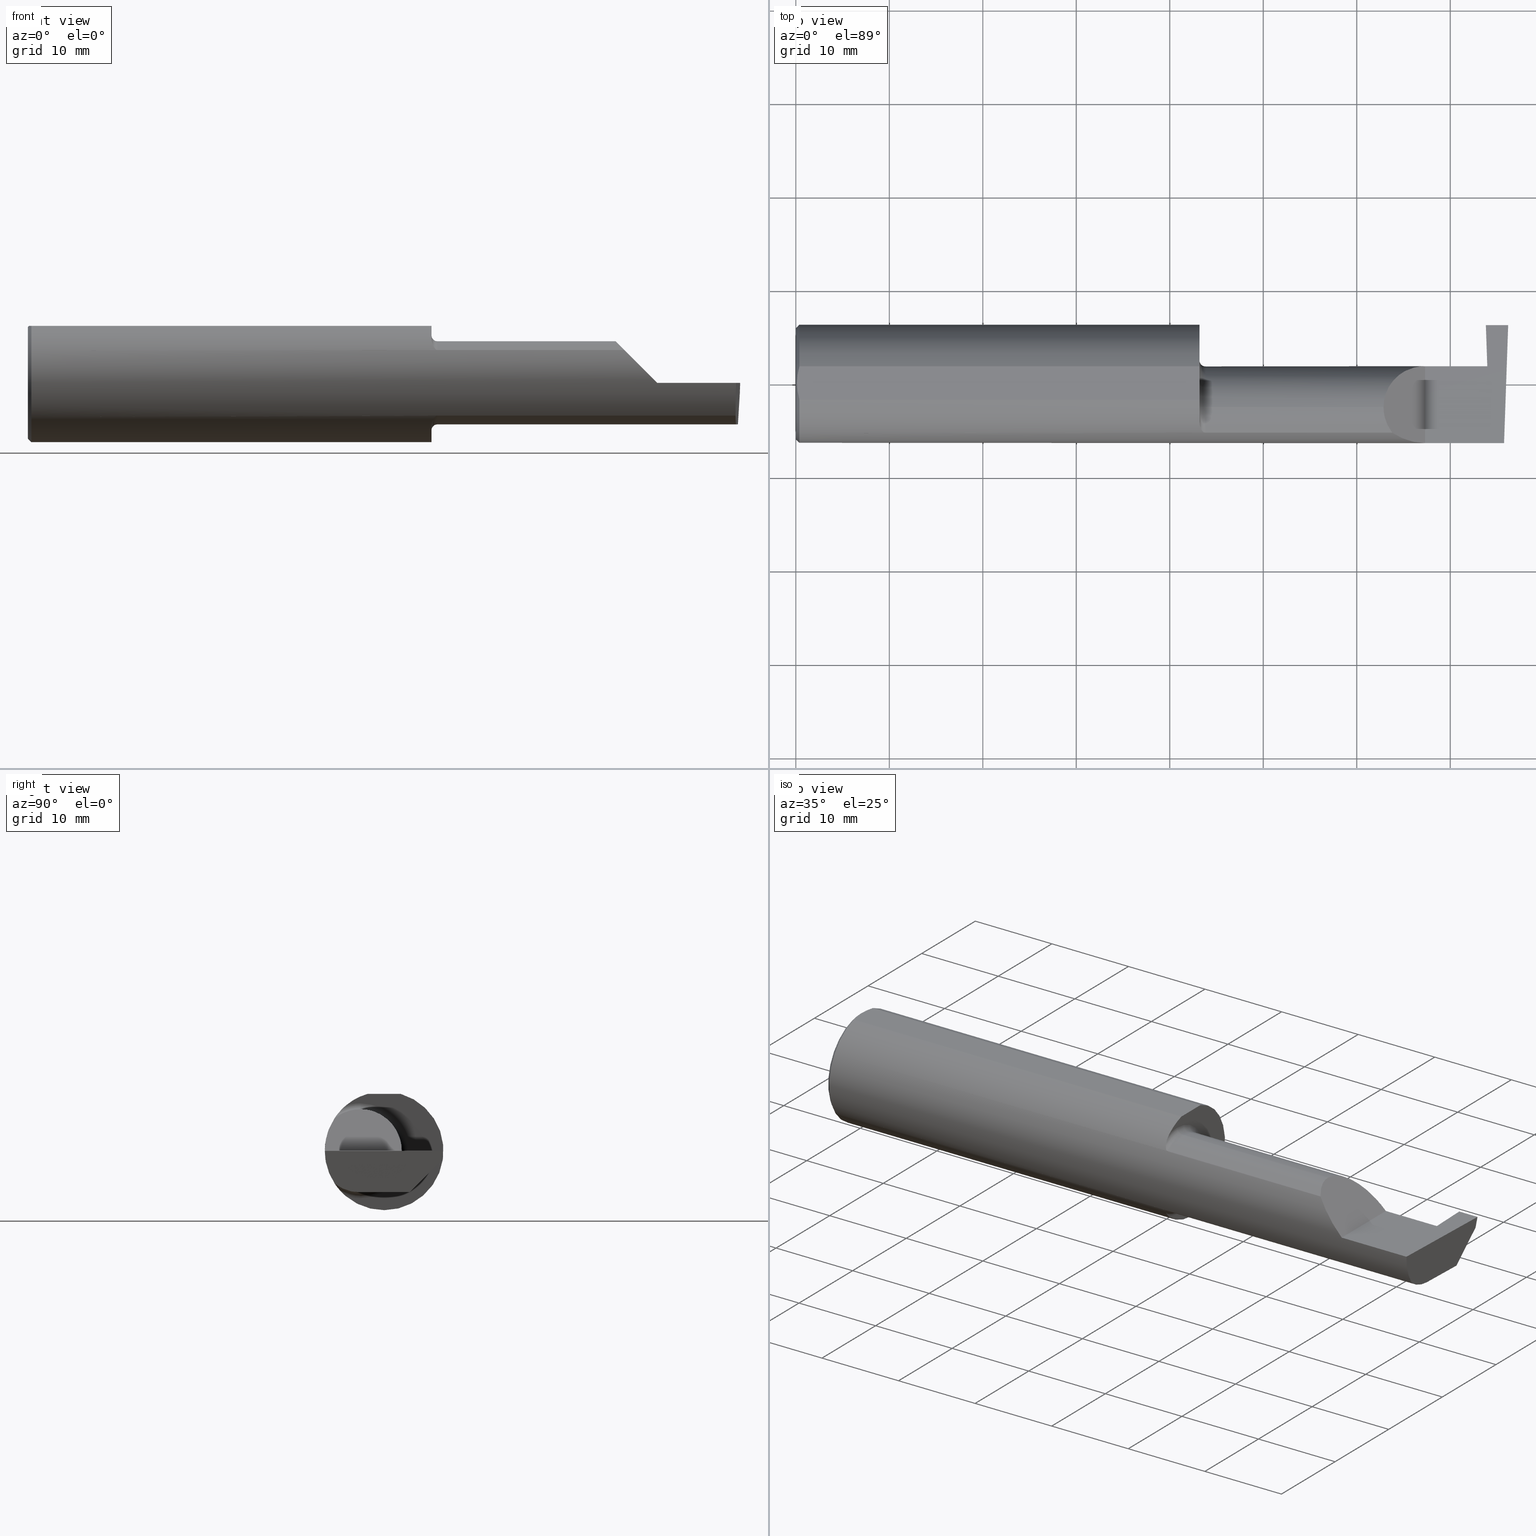
[diagram: canonical four-view strip — front | top / right | iso, engineering-drawing reading convention]
A machine part, canonical four-view strip (front | top / right | iso — engineering-drawing reading convention). The complete STEP part file that produces these views, byte-faithful:
ISO-10303-21;
HEADER;
FILE_DESCRIPTION (( 'STEP AP203' ),
    '1' );
FILE_NAME ('221529-GT093-20.STEP',
    '2024-07-19T22:12:19',
    ( '' ),
    ( '' ),
    'SwSTEP 2.0',
    'SolidWorks 2024',
    '' );
FILE_SCHEMA (( 'CONFIG_CONTROL_DESIGN' ));
ENDSEC;

DATA;
#1 = ORIENTED_EDGE ( 'NONE', *, *, #167, .T. ) ;
#2 = DATE_AND_TIME ( #178, #146 ) ;
#3 = CARTESIAN_POINT ( 'NONE',  ( 0.005880636388018714231, -0.02358947477502552903, 0.2398500000000000354 ) ) ;
#4 = VERTEX_POINT ( 'NONE', #593 ) ;
#5 = APPROVAL_ROLE ( '' ) ;
#6 = ADVANCED_BREP_SHAPE_REPRESENTATION ( '221529-GT093-20', ( #585, #618 ), #702 ) ;
#7 = PLANE ( 'NONE',  #282 ) ;
#8 = AXIS2_PLACEMENT_3D ( 'NONE', #788, #374, #795 ) ;
#9 = CARTESIAN_POINT ( 'NONE',  ( 2.475000000000001421, -0.1008499999999999674, 0.1749999999999999889 ) ) ;
#10 = VERTEX_POINT ( 'NONE', #298 ) ;
#11 = CARTESIAN_POINT ( 'NONE',  ( 1.721700027347578876, -0.2077785947292768443, -0.1387580622202825020 ) ) ;
#12 = DIRECTION ( 'NONE',  ( -1.000000000000000000, 0.000000000000000000, 1.224646799147351482E-16 ) ) ;
#13 = ORIENTED_EDGE ( 'NONE', *, *, #87, .T. ) ;
#14 = DIRECTION ( 'NONE',  ( -1.000000000000000000, -0.000000000000000000, -0.000000000000000000 ) ) ;
#15 = CARTESIAN_POINT ( 'NONE',  ( 0.01499999999999999944, 0.000000000000000000, 0.000000000000000000 ) ) ;
#16 = ORIENTED_EDGE ( 'NONE', *, *, #224, .F. ) ;
#17 = AXIS2_PLACEMENT_3D ( 'NONE', #36, #471, #792 ) ;
#18 = DIRECTION ( 'NONE',  ( 1.000000000000000000, 0.000000000000000000, -0.000000000000000000 ) ) ;
#19 = CC_DESIGN_APPROVAL ( #241, ( #70 ) ) ;
#20 = CARTESIAN_POINT ( 'NONE',  ( 2.906000000000000139, 0.07414987299205413884, -0.0002108382441793291845 ) ) ;
#21 = ORIENTED_EDGE ( 'NONE', *, *, #430, .T. ) ;
#22 = CARTESIAN_POINT ( 'NONE',  ( 3.000000000000000444, -0.1008499999999999813, -0.1749999999999999889 ) ) ;
#23 = APPLICATION_CONTEXT ( 'configuration controlled 3d designs of mechanical parts and assemblies' ) ;
#24 = DIRECTION ( 'NONE',  ( 8.522090287129317841E-05, 0.9999999963686987403, -2.446351747218456217E-16 ) ) ;
#25 = ORIENTED_EDGE ( 'NONE', *, *, #698, .F. ) ;
#26 = DIRECTION ( 'NONE',  ( -0.000000000000000000, 1.000000000000000000, 0.000000000000000000 ) ) ;
#27 = LINE ( 'NONE', #140, #619 ) ;
#28 = ORIENTED_EDGE ( 'NONE', *, *, #221, .F. ) ;
#29 = CARTESIAN_POINT ( 'NONE',  ( 2.980479240051444378, -0.2080850024789291652, -0.1382955322609665250 ) ) ;
#30 = ADVANCED_FACE ( 'NONE', ( #419 ), #537, .F. ) ;
#31 = LINE ( 'NONE', #529, #437 ) ;
#32 = CC_DESIGN_APPROVAL ( #752, ( #169 ) ) ;
#33 = EDGE_LOOP ( 'NONE', ( #707, #231, #137, #502, #295 ) ) ;
#34 = CIRCLE ( 'NONE', #483, 0.1749999999999999889 ) ;
#35 = CARTESIAN_POINT ( 'NONE',  ( 0.01499999999999999944, 0.000000000000000000, -0.2498499999999999888 ) ) ;
#36 = CARTESIAN_POINT ( 'NONE',  ( 0.000000000000000000, 0.000000000000000000, 0.000000000000000000 ) ) ;
#37 = VERTEX_POINT ( 'NONE', #356 ) ;
#38 = EDGE_LOOP ( 'NONE', ( #560, #747, #413, #188, #569, #452, #340, #268 ) ) ;
#39 = CARTESIAN_POINT ( 'NONE',  ( 0.01499999999999999944, 3.059780027669661931E-17, 0.2498499999999999888 ) ) ;
#40 = ADVANCED_FACE ( 'NONE', ( #676 ), #350, .F. ) ;
#41 = ORIENTED_EDGE ( 'NONE', *, *, #108, .F. ) ;
#42 = AXIS2_PLACEMENT_3D ( 'NONE', #737, #727, #378 ) ;
#43 =( NAMED_UNIT ( * ) PLANE_ANGLE_UNIT ( ) SI_UNIT ( $, .RADIAN. ) );
#44 = VERTEX_POINT ( 'NONE', #315 ) ;
#45 = CARTESIAN_POINT ( 'NONE',  ( 0.000000000000000000, 0.000000000000000000, 0.000000000000000000 ) ) ;
#46 = LINE ( 'NONE', #345, #548 ) ;
#47 = CARTESIAN_POINT ( 'NONE',  ( 2.917036419112081891, -0.01887343476265498227, -0.1750000000000000444 ) ) ;
#48 = CARTESIAN_POINT ( 'NONE',  ( 0.01499999999999999944, 0.000000000000000000, 0.000000000000000000 ) ) ;
#49 = CARTESIAN_POINT ( 'NONE',  ( 1.725000000000000089, -0.1008499999999999674, 0.000000000000000000 ) ) ;
#50 = ADVANCED_FACE ( 'NONE', ( #246 ), #433, .F. ) ;
#51 = EDGE_CURVE ( 'NONE', #624, #126, #215, .T. ) ;
#52 = LINE ( 'NONE', #551, #596 ) ;
#53 = VERTEX_POINT ( 'NONE', #120 ) ;
#54 = DIRECTION ( 'NONE',  ( 1.000000000000000000, 0.000000000000000000, 0.000000000000000000 ) ) ;
#55 = CLOSED_SHELL ( 'NONE', ( #634, #794, #64, #40, #789, #314, #666, #235, #50, #293, #722, #209, #475, #106, #61, #734, #663, #194, #486, #744, #121, #30 ) ) ;
#56 = FACE_OUTER_BOUND ( 'NONE', #320, .T. ) ;
#57 = ORIENTED_EDGE ( 'NONE', *, *, #584, .F. ) ;
#58 = COORDINATED_UNIVERSAL_TIME_OFFSET ( 8, 0, .BEHIND. ) ;
#59 = CARTESIAN_POINT ( 'NONE',  ( 1.725000000000000089, -0.2080850024789291375, -0.1382955322609665805 ) ) ;
#60 = CIRCLE ( 'NONE', #798, 0.2348499999999999754 ) ;
#61 = ADVANCED_FACE ( 'NONE', ( #56 ), #429, .F. ) ;
#62 = ORIENTED_EDGE ( 'NONE', *, *, #134, .T. ) ;
#63 = CALENDAR_DATE ( 2024, 19, 7 ) ;
#64 = ADVANCED_FACE ( 'NONE', ( #623 ), #301, .F. ) ;
#65 = DESIGN_CONTEXT ( 'detailed design', #285, 'design' ) ;
#66 = CARTESIAN_POINT ( 'NONE',  ( 2.908037492458068307, -2.828026118470033268, -0.04973274877547772393 ) ) ;
#67 = EDGE_LOOP ( 'NONE', ( #655, #480, #408, #16, #479, #90, #302 ) ) ;
#68 = APPROVAL_DATE_TIME ( #628, #752 ) ;
#69 = CARTESIAN_POINT ( 'NONE',  ( 0.000000000000000000, 0.06997856814768359246, 0.2398500000000000076 ) ) ;
#70 = SECURITY_CLASSIFICATION ( '', '', #748 ) ;
#71 = VECTOR ( 'NONE', #96, 39.37007874015748854 ) ;
#72 = PLANE ( 'NONE',  #515 ) ;
#73 = VERTEX_POINT ( 'NONE', #620 ) ;
#74 = PERSON_AND_ORGANIZATION_ROLE ( 'design_supplier' ) ;
#75 = CARTESIAN_POINT ( 'NONE',  ( 2.912975647374412613, 0.2473935949740175555, -0.1998781654038191691 ) ) ;
#76 = CARTESIAN_POINT ( 'NONE',  ( 2.908037492458068307, -2.828026118470033268, -0.04973274877547772393 ) ) ;
#77 = VERTEX_POINT ( 'NONE', #672 ) ;
#78 = CARTESIAN_POINT ( 'NONE',  ( 1.712579853086619419, -0.2024300470081735470, -0.1464774911482684128 ) ) ;
#79 = PLANE ( 'NONE',  #704 ) ;
#80 = ORIENTED_EDGE ( 'NONE', *, *, #281, .F. ) ;
#81 = CARTESIAN_POINT ( 'NONE',  ( 1.714343523383978773, -0.2041337200786084161, 0.1440846171672511000 ) ) ;
#82 = DIRECTION ( 'NONE',  ( 0.000000000000000000, 0.000000000000000000, 1.000000000000000000 ) ) ;
#83 = VERTEX_POINT ( 'NONE', #261 ) ;
#84 = CARTESIAN_POINT ( 'NONE',  ( 2.982632426700501327, -0.2498495826666993214, -0.0004566631977791965049 ) ) ;
#85 = LINE ( 'NONE', #524, #528 ) ;
#86 = EDGE_LOOP ( 'NONE', ( #721, #632 ) ) ;
#87 = EDGE_CURVE ( 'NONE', #638, #590, #681, .T. ) ;
#88 = CARTESIAN_POINT ( 'NONE',  ( 1.718876997637615034, -0.2068363917296600907, 0.1401586554522229189 ) ) ;
#89 = CARTESIAN_POINT ( 'NONE',  ( 2.917047045968828467, 0.07436332225211046698, -0.1750383420824915270 ) ) ;
#90 = ORIENTED_EDGE ( 'NONE', *, *, #397, .F. ) ;
#91 = CARTESIAN_POINT ( 'NONE',  ( 1.700000000000000178, -0.1008499999999999674, 0.000000000000000000 ) ) ;
#92 = CARTESIAN_POINT ( 'NONE',  ( 1.700000000000000178, 0.2741499999999999493, 0.000000000000000000 ) ) ;
#93 = EDGE_LOOP ( 'NONE', ( #375, #448, #394, #388 ) ) ;
#94 = AXIS2_PLACEMENT_3D ( 'NONE', #291, #773, #469 ) ;
#95 = PLANE ( 'NONE',  #238 ) ;
#96 = DIRECTION ( 'NONE',  ( 0.06975643500179386225, 0.001215747646129009549, -0.9975633121428941763 ) ) ;
#97 = VERTEX_POINT ( 'NONE', #546 ) ;
#98 = EDGE_CURVE ( 'NONE', #615, #648, #52, .T. ) ;
#99 = VERTEX_POINT ( 'NONE', #499 ) ;
#100 = DIRECTION ( 'NONE',  ( 0.06975638345029228082, 0.000000000000000000, -0.9975640565737800003 ) ) ;
#101 = VERTEX_POINT ( 'NONE', #741 ) ;
#102 = APPROVAL_PERSON_ORGANIZATION ( #535, #492, #686 ) ;
#103 = VECTOR ( 'NONE', #125, 39.37007874015748143 ) ;
#104 = MECHANICAL_CONTEXT ( 'NONE', #23, 'mechanical' ) ;
#105 = CARTESIAN_POINT ( 'NONE',  ( 2.917029432995152050, -0.1008500000000000091, -0.1749999999999999889 ) ) ;
#106 = ADVANCED_FACE ( 'NONE', ( #187 ), #732, .T. ) ;
#107 = FACE_OUTER_BOUND ( 'NONE', #690, .T. ) ;
#108 = EDGE_CURVE ( 'NONE', #99, #651, #490, .T. ) ;
#109 = DIRECTION ( 'NONE',  ( 0.02616100201822768243, -0.0009135623211515312911, 0.9996573249755575929 ) ) ;
#110 = DIRECTION ( 'NONE',  ( 0.000000000000000000, 0.000000000000000000, -1.000000000000000000 ) ) ;
#111 = VERTEX_POINT ( 'NONE', #610 ) ;
#112 = CARTESIAN_POINT ( 'NONE',  ( 2.917047045968828911, 0.1058243371481679407, -0.1749999999999999889 ) ) ;
#113 = CARTESIAN_POINT ( 'NONE',  ( 1.725000000000000089, -0.1008499999999999674, 0.000000000000000000 ) ) ;
#114 = CC_DESIGN_PERSON_AND_ORGANIZATION_ASSIGNMENT ( #184, #74, ( #169 ) ) ;
#115 = CIRCLE ( 'NONE', #195, 0.2498499999999999888 ) ;
#116 = DIRECTION ( 'NONE',  ( -1.000000000000000000, -0.000000000000000000, -0.000000000000000000 ) ) ;
#117 = ORIENTED_EDGE ( 'NONE', *, *, #329, .F. ) ;
#118 = AXIS2_PLACEMENT_3D ( 'NONE', #609, #230, #244 ) ;
#119 = DIRECTION ( 'NONE',  ( -0.04932528479609452066, 0.7062460676987120101, 0.7062460676987096786 ) ) ;
#120 = CARTESIAN_POINT ( 'NONE',  ( 2.982644377562602589, -0.2498499999999999610, 1.813681607540488003E-17 ) ) ;
#121 = ADVANCED_FACE ( 'NONE', ( #505 ), #627, .F. ) ;
#122 = ORIENTED_EDGE ( 'NONE', *, *, #714, .T. ) ;
#123 = COORDINATED_UNIVERSAL_TIME_OFFSET ( 8, 0, .BEHIND. ) ;
#124 = CARTESIAN_POINT ( 'NONE',  ( 2.919013260303944257, 0.07439359513054551176, -0.1998782938404957410 ) ) ;
#125 = DIRECTION ( 'NONE',  ( -0.000000000000000000, 1.000000000000000000, -0.000000000000000000 ) ) ;
#126 = VERTEX_POINT ( 'NONE', #191 ) ;
#127 = DATE_TIME_ROLE ( 'creation_date' ) ;
#128 = FACE_OUTER_BOUND ( 'NONE', #768, .T. ) ;
#129 = CARTESIAN_POINT ( 'NONE',  ( 1.725000000000000089, -0.1008499999999999674, 0.000000000000000000 ) ) ;
#130 = ORIENTED_EDGE ( 'NONE', *, *, #781, .F. ) ;
#131 = DATE_AND_TIME ( #385, #362 ) ;
#132 = AXIS2_PLACEMENT_3D ( 'NONE', #91, #217, #649 ) ;
#133 = CARTESIAN_POINT ( 'NONE',  ( 2.547487373415292744, 0.07414999999999996594, 0.1025126265847083745 ) ) ;
#134 = EDGE_CURVE ( 'NONE', #77, #101, #501, .T. ) ;
#135 = VECTOR ( 'NONE', #335, 39.37007874015748143 ) ;
#136 = LINE ( 'NONE', #512, #793 ) ;
#137 = ORIENTED_EDGE ( 'NONE', *, *, #431, .F. ) ;
#138 = EDGE_CURVE ( 'NONE', #142, #219, #312, .T. ) ;
#139 = CARTESIAN_POINT ( 'NONE',  ( 0.01180609504125290990, -0.05857511741890331081, 0.2398500000000000354 ) ) ;
#140 = CARTESIAN_POINT ( 'NONE',  ( 2.999793790066964672, 0.2455961323656265238, -0.005799112959718751882 ) ) ;
#141 = B_SPLINE_CURVE_WITH_KNOTS ( 'NONE', 3,
 ( #175, #171, #658, #591, #368, #715 ),
 .UNSPECIFIED., .F., .F.,
 ( 4, 2, 4 ),
 ( 0.006064768674679249863, 0.006954995897674296282, 0.007845223120669342701 ),
 .UNSPECIFIED. ) ;
#142 = VERTEX_POINT ( 'NONE', #369 ) ;
#143 = CARTESIAN_POINT ( 'NONE',  ( 1.700000000000000178, -0.2498499999999999888, 0.2398500000000000076 ) ) ;
#144 = ORIENTED_EDGE ( 'NONE', *, *, #265, .T. ) ;
#145 = FACE_OUTER_BOUND ( 'NONE', #552, .T. ) ;
#146 = LOCAL_TIME ( 15, 12, 19.00000000000000000, #189 ) ;
#147 = VECTOR ( 'NONE', #637, 39.37007874015748854 ) ;
#148 = EDGE_CURVE ( 'NONE', #370, #10, #176, .T. ) ;
#149 = DIRECTION ( 'NONE',  ( -0.03432699337968036363, -0.2586665114180216052, -0.9653565628286482347 ) ) ;
#150 = ORIENTED_EDGE ( 'NONE', *, *, #349, .T. ) ;
#151 = EDGE_CURVE ( 'NONE', #101, #164, #396, .T. ) ;
#152 = CARTESIAN_POINT ( 'NONE',  ( 1.700000000000000178, -0.1008499999999999536, -0.1749999999999999889 ) ) ;
#153 = DIRECTION ( 'NONE',  ( 1.000000000000000000, 0.000000000000000000, 0.000000000000000000 ) ) ;
#154 = ORIENTED_EDGE ( 'NONE', *, *, #608, .T. ) ;
#155 = DIRECTION ( 'NONE',  ( 0.000000000000000000, -0.000000000000000000, 1.000000000000000000 ) ) ;
#156 = CARTESIAN_POINT ( 'NONE',  ( 2.982660284539054629, -0.2493944837933358694, 2.123502703737254632E-18 ) ) ;
#157 = ORIENTED_EDGE ( 'NONE', *, *, #163, .T. ) ;
#158 = CARTESIAN_POINT ( 'NONE',  ( 1.721718393013769610, -0.2077830475237242569, 0.1387513848711936226 ) ) ;
#159 = AXIS2_PLACEMENT_3D ( 'NONE', #225, #542, #100 ) ;
#160 = DIRECTION ( 'NONE',  ( 1.000000000000000000, 0.000000000000000000, 0.000000000000000000 ) ) ;
#161 = ORIENTED_EDGE ( 'NONE', *, *, #587, .T. ) ;
#162 = AXIS2_PLACEMENT_3D ( 'NONE', #559, #614, #181 ) ;
#163 = EDGE_CURVE ( 'NONE', #126, #4, #332, .T. ) ;
#164 = VERTEX_POINT ( 'NONE', #766 ) ;
#165 = ORIENTED_EDGE ( 'NONE', *, *, #409, .T. ) ;
#166 = APPLICATION_PROTOCOL_DEFINITION ( 'international standard', 'config_control_design', 1994, #23 ) ;
#167 = EDGE_CURVE ( 'NONE', #101, #343, #633, .T. ) ;
#168 = ORIENTED_EDGE ( 'NONE', *, *, #453, .T. ) ;
#169 = PRODUCT_DEFINITION_FORMATION_WITH_SPECIFIED_SOURCE ( 'ANY', '', #297, .NOT_KNOWN. ) ;
#170 = CIRCLE ( 'NONE', #417, 0.1749999999999999889 ) ;
#171 = CARTESIAN_POINT ( 'NONE',  ( 0.01181966702888963446, 0.05862357455657472849, 0.2398500000000000631 ) ) ;
#172 = CARTESIAN_POINT ( 'NONE',  ( 2.650000000000000355, -0.2500000000000000555, 4.286263797015727350E-17 ) ) ;
#173 = ORIENTED_EDGE ( 'NONE', *, *, #383, .F. ) ;
#174 = DIRECTION ( 'NONE',  ( 0.000000000000000000, 0.000000000000000000, -1.000000000000000000 ) ) ;
#175 = CARTESIAN_POINT ( 'NONE',  ( 0.01499999999999998036, 0.06997856814768359246, 0.2398500000000000076 ) ) ;
#176 = LINE ( 'NONE', #210, #147 ) ;
#177 = ORIENTED_EDGE ( 'NONE', *, *, #712, .F. ) ;
#178 = CALENDAR_DATE ( 2024, 19, 7 ) ;
#179 = CARTESIAN_POINT ( 'NONE',  ( 0.009274236576542580976, -0.04692405468904852633, 0.2398500000000000076 ) ) ;
#180 = VECTOR ( 'NONE', #26, 39.37007874015748143 ) ;
#181 = DIRECTION ( 'NONE',  ( 0.000000000000000000, 0.000000000000000000, 1.000000000000000000 ) ) ;
#182 = LOCAL_TIME ( 15, 12, 19.00000000000000000, #449 ) ;
#183 = EDGE_LOOP ( 'NONE', ( #13, #122, #161, #202, #728 ) ) ;
#184 = PERSON_AND_ORGANIZATION ( #229, #579 ) ;
#185 = CARTESIAN_POINT ( 'NONE',  ( 1.701385488563270210, -0.1808287530430325862, -0.1728790649396286794 ) ) ;
#186 =( BOUNDED_CURVE ( )  B_SPLINE_CURVE ( 3, ( #694, #339, #330, #508 ),
 .UNSPECIFIED., .F., .T. ) 
 B_SPLINE_CURVE_WITH_KNOTS ( ( 4, 4 ),
 ( 4.712388980384689674, 5.298966915116346321 ),
 .UNSPECIFIED. ) 
 CURVE ( )  GEOMETRIC_REPRESENTATION_ITEM ( )  RATIONAL_B_SPLINE_CURVE ( ( 1.000000000000000000, 0.9715321379117538569, 0.9715321379117538569, 1.000000000000000000 ) ) 
 REPRESENTATION_ITEM ( '' )  );
#187 = FACE_OUTER_BOUND ( 'NONE', #426, .T. ) ;
#188 = ORIENTED_EDGE ( 'NONE', *, *, #163, .F. ) ;
#189 = COORDINATED_UNIVERSAL_TIME_OFFSET ( 8, 0, .BEHIND. ) ;
#190 = DIRECTION ( 'NONE',  ( 0.000000000000000000, 0.000000000000000000, 1.000000000000000000 ) ) ;
#191 = CARTESIAN_POINT ( 'NONE',  ( 2.475000000000001421, -0.1008499999999999674, 0.1749999999999999889 ) ) ;
#192 = ORIENTED_EDGE ( 'NONE', *, *, #198, .F. ) ;
#193 = LINE ( 'NONE', #446, #760 ) ;
#194 = ADVANCED_FACE ( 'NONE', ( #573 ), #72, .F. ) ;
#195 = AXIS2_PLACEMENT_3D ( 'NONE', #432, #675, #313 ) ;
#196 = VERTEX_POINT ( 'NONE', #683 ) ;
#197 = APPROVAL_DATE_TIME ( #131, #492 ) ;
#198 = EDGE_CURVE ( 'NONE', #53, #99, #589, .T. ) ;
#199 = CARTESIAN_POINT ( 'NONE',  ( 3.000000000000000444, 0.07414999999999991043, 7.431225809576783727E-33 ) ) ;
#200 = AXIS2_PLACEMENT_3D ( 'NONE', #763, #688, #82 ) ;
#201 = DIRECTION ( 'NONE',  ( 0.000000000000000000, 0.000000000000000000, -1.000000000000000000 ) ) ;
#202 = ORIENTED_EDGE ( 'NONE', *, *, #431, .T. ) ;
#203 = DIRECTION ( 'NONE',  ( -1.000000000000000000, -0.000000000000000000, -0.000000000000000000 ) ) ;
#204 = CC_DESIGN_DATE_AND_TIME_ASSIGNMENT ( #2, #127, ( #693 ) ) ;
#205 = CIRCLE ( 'NONE', #660, 0.1749999999999999889 ) ;
#206 = CARTESIAN_POINT ( 'NONE',  ( 2.907372681961405636, 0.07204909126152565790, -0.03119400421533637113 ) ) ;
#207 = VERTEX_POINT ( 'NONE', #750 ) ;
#208 = FACE_OUTER_BOUND ( 'NONE', #38, .T. ) ;
#209 = ADVANCED_FACE ( 'NONE', ( #458 ), #390, .F. ) ;
#210 = CARTESIAN_POINT ( 'NONE',  ( 2.993019781838999194, 0.1785693626775286258, -0.1750000000000000444 ) ) ;
#211 = ORIENTED_EDGE ( 'NONE', *, *, #234, .T. ) ;
#212 = PLANE ( 'NONE',  #300 ) ;
#213 = VECTOR ( 'NONE', #342, 39.37007874015748143 ) ;
#214 = DIRECTION ( 'NONE',  ( -1.860109918781714014E-16, 0.9999992573649232330, 0.001218716374663524060 ) ) ;
#215 =( BOUNDED_CURVE ( )  B_SPLINE_CURVE ( 3, ( #311, #679, #251, #9 ),
 .UNSPECIFIED., .F., .T. ) 
 B_SPLINE_CURVE_WITH_KNOTS ( ( 4, 4 ),
 ( 5.623622464215678463, 6.283185307179586232 ),
 .UNSPECIFIED. ) 
 CURVE ( )  GEOMETRIC_REPRESENTATION_ITEM ( )  RATIONAL_B_SPLINE_CURVE ( ( 1.000000000000000000, 0.9640754331822828371, 0.9640754331822828371, 1.000000000000000000 ) ) 
 REPRESENTATION_ITEM ( '' )  );
#216 = ORIENTED_EDGE ( 'NONE', *, *, #348, .F. ) ;
#217 = DIRECTION ( 'NONE',  ( -1.000000000000000000, -0.000000000000000000, -0.000000000000000000 ) ) ;
#218 = CARTESIAN_POINT ( 'NONE',  ( 2.990479469570817006, 0.1058243371481679268, -0.1749999999999999889 ) ) ;
#219 = VERTEX_POINT ( 'NONE', #643 ) ;
#220 = PLANE ( 'NONE',  #592 ) ;
#221 = EDGE_CURVE ( 'NONE', #73, #401, #697, .T. ) ;
#222 = LINE ( 'NONE', #418, #667 ) ;
#223 = ORIENTED_EDGE ( 'NONE', *, *, #411, .T. ) ;
#224 = EDGE_CURVE ( 'NONE', #97, #673, #27, .T. ) ;
#225 = CARTESIAN_POINT ( 'NONE',  ( 2.917047045968828911, -2.827869095774233177, -0.1785753428801203913 ) ) ;
#226 = AXIS2_PLACEMENT_3D ( 'NONE', #92, #160, #504 ) ;
#227 = CONICAL_SURFACE ( 'NONE', #498, 0.2498499999999999888, 0.7853981633974485010 ) ;
#228 = ORIENTED_EDGE ( 'NONE', *, *, #523, .F. ) ;
#229 = PERSON ( 'UNSPECIFIED', 'UNSPECIFIED', 'UNSPECIFIED', ('UNSPECIFIED'), ('UNSPECIFIED'), ('UNSPECIFIED') ) ;
#230 = DIRECTION ( 'NONE',  ( -1.000000000000000000, -0.000000000000000000, -0.000000000000000000 ) ) ;
#231 = ORIENTED_EDGE ( 'NONE', *, *, #771, .T. ) ;
#232 = AXIS2_PLACEMENT_3D ( 'NONE', #754, #450, #629 ) ;
#233 = FACE_OUTER_BOUND ( 'NONE', #456, .T. ) ;
#234 = EDGE_CURVE ( 'NONE', #99, #624, #186, .T. ) ;
#235 = ADVANCED_FACE ( 'NONE', ( #447 ), #79, .F. ) ;
#236 = ORIENTED_EDGE ( 'NONE', *, *, #327, .T. ) ;
#237 = DIRECTION ( 'NONE',  ( 1.000000000000000000, -0.000000000000000000, -0.000000000000000000 ) ) ;
#238 = AXIS2_PLACEMENT_3D ( 'NONE', #519, #155, #18 ) ;
#239 = CARTESIAN_POINT ( 'NONE',  ( 1.700000000000000178, 0.000000000000000000, 0.000000000000000000 ) ) ;
#240 = LOCAL_TIME ( 15, 12, 19.00000000000000000, #58 ) ;
#241 = APPROVAL ( #316, 'UNSPECIFIED' ) ;
#242 = VECTOR ( 'NONE', #54, 39.37007874015748143 ) ;
#243 = ORIENTED_EDGE ( 'NONE', *, *, #714, .F. ) ;
#244 = DIRECTION ( 'NONE',  ( 0.000000000000000000, 0.000000000000000000, 1.000000000000000000 ) ) ;
#245 = CARTESIAN_POINT ( 'NONE',  ( 0.000000000000000000, 0.000000000000000000, 0.000000000000000000 ) ) ;
#246 = FACE_OUTER_BOUND ( 'NONE', #93, .T. ) ;
#247 = EDGE_LOOP ( 'NONE', ( #1, #580, #779 ) ) ;
#248 = DATE_AND_TIME ( #742, #240 ) ;
#249 = CARTESIAN_POINT ( 'NONE',  ( 2.825000000000000178, 0.2471500000000000086, -3.306546357697639493E-19 ) ) ;
#250 = EDGE_CURVE ( 'NONE', #44, #207, #363, .T. ) ;
#251 = CARTESIAN_POINT ( 'NONE',  ( 2.475000000000001421, -0.1400387324517231857, 0.1750000000000000167 ) ) ;
#252 = ORIENTED_EDGE ( 'NONE', *, *, #303, .T. ) ;
#253 = PERSON_AND_ORGANIZATION ( #229, #579 ) ;
#254 = CARTESIAN_POINT ( 'NONE',  ( 1.723318040126429640, -0.2080850024789289987, -0.1382955322609666915 ) ) ;
#255 = CARTESIAN_POINT ( 'NONE',  ( 0.000000000000000000, -0.06997856814768359246, 0.2398500000000000076 ) ) ;
#256 = APPROVAL_PERSON_ORGANIZATION ( #371, #241, #258 ) ;
#257 = ORIENTED_EDGE ( 'NONE', *, *, #645, .T. ) ;
#258 = APPROVAL_ROLE ( '' ) ;
#259 = VECTOR ( 'NONE', #214, 39.37007874015748854 ) ;
#260 = CARTESIAN_POINT ( 'NONE',  ( 1.718863362722771404, -0.2068301641248771194, -0.1401678546132359982 ) ) ;
#261 = CARTESIAN_POINT ( 'NONE',  ( 2.912037608447156423, 0.07414999999999995206, 5.386143063026812378E-18 ) ) ;
#262 = ORIENTED_EDGE ( 'NONE', *, *, #536, .F. ) ;
#263 = DATE_TIME_ROLE ( 'classification_date' ) ;
#264 = CARTESIAN_POINT ( 'NONE',  ( 1.714302603425052363, -0.2041009206016213828, -0.1441313430770039816 ) ) ;
#265 = EDGE_CURVE ( 'NONE', #4, #583, #462, .T. ) ;
#266 = DIRECTION ( 'NONE',  ( -1.000000000000000000, -0.000000000000000000, -0.000000000000000000 ) ) ;
#267 = EDGE_CURVE ( 'NONE', #77, #196, #520, .T. ) ;
#268 = ORIENTED_EDGE ( 'NONE', *, *, #167, .F. ) ;
#269 = PERSON_AND_ORGANIZATION_ROLE ( 'creator' ) ;
#270 = DIRECTION ( 'NONE',  ( 0.03492071764873293932, 0.000000000000000000, -0.9993900857417475914 ) ) ;
#271 = DIRECTION ( 'NONE',  ( 1.000000000000000000, 0.000000000000000000, 0.000000000000000000 ) ) ;
#272 = AXIS2_PLACEMENT_3D ( 'NONE', #775, #706, #481 ) ;
#273 = EDGE_LOOP ( 'NONE', ( #284, #243, #659, #521, #422, #364 ) ) ;
#274 = CC_DESIGN_PERSON_AND_ORGANIZATION_ASSIGNMENT ( #566, #510, ( #169 ) ) ;
#275 = VECTOR ( 'NONE', #562, 39.37007874015748143 ) ;
#276 = CARTESIAN_POINT ( 'NONE',  ( 2.998364291748493393, 0.2348243371481683328, -0.04599999999999999922 ) ) ;
#277 = B_SPLINE_CURVE_WITH_KNOTS ( 'NONE', 3,
 ( #680, #457, #470, #705, #399, #765, #595, #341, #81, #292, #88, #158, #696, #532 ),
 .UNSPECIFIED., .F., .F.,
 ( 4, 2, 2, 2, 2, 2, 4 ),
 ( 0.0003834465838148164922, 0.0008781406165086738831, 0.001372834649202531437, 0.001867528681896388773, 0.002114875698243311695, 0.002238549206416766760, 0.002362222714590221824 ),
 .UNSPECIFIED. ) ;
#278 = CARTESIAN_POINT ( 'NONE',  ( 2.919013260303944257, 0.07439359513054551176, -0.1998782938404957410 ) ) ;
#279 = ORIENTED_EDGE ( 'NONE', *, *, #224, .T. ) ;
#280 = DIRECTION ( 'NONE',  ( 0.000000000000000000, -0.9659258262890680902, 0.2588190451025216832 ) ) ;
#281 = EDGE_CURVE ( 'NONE', #733, #370, #136, .T. ) ;
#282 = AXIS2_PLACEMENT_3D ( 'NONE', #75, #331, #270 ) ;
#283 = DIRECTION ( 'NONE',  ( 1.000000000000000000, 0.000000000000000000, 0.000000000000000000 ) ) ;
#284 = ORIENTED_EDGE ( 'NONE', *, *, #138, .T. ) ;
#285 = APPLICATION_CONTEXT ( 'configuration controlled 3d designs of mechanical parts and assemblies' ) ;
#286 = ORIENTED_EDGE ( 'NONE', *, *, #348, .T. ) ;
#287 = CARTESIAN_POINT ( 'NONE',  ( 2.981341028891337785, -0.2497592792593336664, -0.04986346618389509572 ) ) ;
#288 = VECTOR ( 'NONE', #338, 39.37007874015748854 ) ;
#289 = VECTOR ( 'NONE', #24, 39.37007874015748854 ) ;
#290 = DIRECTION ( 'NONE',  ( 0.000000000000000000, 0.000000000000000000, 1.000000000000000000 ) ) ;
#291 = CARTESIAN_POINT ( 'NONE',  ( 2.994767799596354418, 0.2473327124642303587, -0.1999314649951115241 ) ) ;
#292 = CARTESIAN_POINT ( 'NONE',  ( 1.717647060162628581, -0.2062109266231183513, 0.1410799729252290025 ) ) ;
#293 = ADVANCED_FACE ( 'NONE', ( #393 ), #326, .T. ) ;
#294 = DIRECTION ( 'NONE',  ( 0.000000000000000000, 0.000000000000000000, 1.000000000000000000 ) ) ;
#295 = ORIENTED_EDGE ( 'NONE', *, *, #98, .F. ) ;
#296 = APPLICATION_PROTOCOL_DEFINITION ( 'international standard', 'config_control_design', 1994, #285 ) ;
#297 = PRODUCT ( '221529-GT093-20', '221529-GT093-20', '', ( #104 ) ) ;
#298 = CARTESIAN_POINT ( 'NONE',  ( 2.983262242683407006, -0.1008499999999999674, -0.1749999999999999889 ) ) ;
#299 =( NAMED_UNIT ( * ) SI_UNIT ( $, .STERADIAN. ) SOLID_ANGLE_UNIT ( ) );
#300 = AXIS2_PLACEMENT_3D ( 'NONE', #461, #674, #780 ) ;
#301 = TOROIDAL_SURFACE ( 'NONE', #756, 0.1999999999999999833, 0.02499999999999994241 ) ;
#302 = ORIENTED_EDGE ( 'NONE', *, *, #684, .F. ) ;
#303 = EDGE_CURVE ( 'NONE', #73, #673, #85, .T. ) ;
#304 = VERTEX_POINT ( 'NONE', #428 ) ;
#305 = DIRECTION ( 'NONE',  ( 0.000000000000000000, 0.000000000000000000, 1.000000000000000000 ) ) ;
#306 = DIRECTION ( 'NONE',  ( 0.000000000000000000, 0.000000000000000000, -1.000000000000000000 ) ) ;
#307 = CARTESIAN_POINT ( 'NONE',  ( 2.908037492458067863, 0.06794054266098323303, -0.04620338416404774079 ) ) ;
#308 = DIRECTION ( 'NONE',  ( 0.000000000000000000, 0.000000000000000000, 1.000000000000000000 ) ) ;
#309 = DIRECTION ( 'NONE',  ( 0.000000000000000000, 0.000000000000000000, 1.000000000000000000 ) ) ;
#310 = VECTOR ( 'NONE', #797, 39.37007874015748143 ) ;
#311 = CARTESIAN_POINT ( 'NONE',  ( 2.511704467739034552, -0.2080850024789292485, 0.1382955322609664139 ) ) ;
#312 = CIRCLE ( 'NONE', #500, 0.2498499999999999888 ) ;
#313 = DIRECTION ( 'NONE',  ( 0.000000000000000000, 0.000000000000000000, -1.000000000000000000 ) ) ;
#314 = ADVANCED_FACE ( 'NONE', ( #617 ), #786, .T. ) ;
#315 = CARTESIAN_POINT ( 'NONE',  ( 1.700000000000000178, -0.1616050818046604332, 0.1905487340154980169 ) ) ;
#316 = APPROVAL_STATUS ( 'not_yet_approved' ) ;
#317 = VECTOR ( 'NONE', #558, 39.37007874015748143 ) ;
#318 = CARTESIAN_POINT ( 'NONE',  ( 2.908037492458067863, 0.07420629955631044550, -0.04619574797784884584 ) ) ;
#319 = DIRECTION ( 'NONE',  ( 0.000000000000000000, 0.000000000000000000, 1.000000000000000000 ) ) ;
#320 = EDGE_LOOP ( 'NONE', ( #405, #776, #664, #621, #459, #751 ) ) ;
#321 = CARTESIAN_POINT ( 'NONE',  ( 2.475000000000001421, -0.1008499999999999674, 0.1749999999999999889 ) ) ;
#322 = DIRECTION ( 'NONE',  ( 1.000000000000000000, 0.000000000000000000, 0.000000000000000000 ) ) ;
#323 = VECTOR ( 'NONE', #602, 39.37007874015748143 ) ;
#324 = ORIENTED_EDGE ( 'NONE', *, *, #87, .F. ) ;
#325 = APPROVAL_DATE_TIME ( #248, #241 ) ;
#326 = CONICAL_SURFACE ( 'NONE', #769, 0.2498499999999999888, 0.7853981633974485010 ) ;
#327 = EDGE_CURVE ( 'NONE', #164, #196, #489, .T. ) ;
#328 = CARTESIAN_POINT ( 'NONE',  ( 2.982632426700501327, -0.2498495826666993214, -0.0004566631977791965049 ) ) ;
#329 = EDGE_CURVE ( 'NONE', #304, #624, #222, .T. ) ;
#330 = CARTESIAN_POINT ( 'NONE',  ( 2.552984868485333347, -0.2355204011147992438, 0.09701513151466735485 ) ) ;
#331 = DIRECTION ( 'NONE',  ( 0.9987827668610290699, 0.03485699000042884188, 0.03489949669461413218 ) ) ;
#332 = LINE ( 'NONE', #568, #726 ) ;
#333 = EDGE_LOOP ( 'NONE', ( #601, #352, #211, #117, #603, #784, #324, #685, #177, #398, #796, #703, #539, #443 ) ) ;
#334 = DIRECTION ( 'NONE',  ( 0.04426438787457080692, 0.001217521851804607156, -0.9990191097304544909 ) ) ;
#335 = DIRECTION ( 'NONE',  ( -1.000000000000000000, -0.000000000000000000, -0.000000000000000000 ) ) ;
#336 = AXIS2_PLACEMENT_3D ( 'NONE', #533, #468, #306 ) ;
#337 = ORIENTED_EDGE ( 'NONE', *, *, #731, .F. ) ;
#338 = DIRECTION ( 'NONE',  ( 0.03487823687994805882, -0.9993915692020550745, -4.266149715957534195E-18 ) ) ;
#339 = CARTESIAN_POINT ( 'NONE',  ( 2.600434159100403875, -0.2498499999999999055, 0.04956584089959691769 ) ) ;
#340 = ORIENTED_EDGE ( 'NONE', *, *, #523, .T. ) ;
#341 = CARTESIAN_POINT ( 'NONE',  ( 1.712616400345754908, -0.2024684335577102146, 0.1464246884265637538 ) ) ;
#342 = DIRECTION ( 'NONE',  ( -0.04274495231316566973, 0.2585824888546562894, 0.9650429863531866381 ) ) ;
#343 = VERTEX_POINT ( 'NONE', #772 ) ;
#344 = DIRECTION ( 'NONE',  ( -1.000000000000000000, -0.000000000000000000, -0.000000000000000000 ) ) ;
#345 = CARTESIAN_POINT ( 'NONE',  ( 2.977412177158956563, -0.2496672875357696664, -0.1999314649951114686 ) ) ;
#346 = ORIENTED_EDGE ( 'NONE', *, *, #303, .F. ) ;
#347 = LINE ( 'NONE', #143, #180 ) ;
#348 = EDGE_CURVE ( 'NONE', #583, #761, #170, .T. ) ;
#349 = EDGE_CURVE ( 'NONE', #304, #4, #34, .T. ) ;
#350 = TOROIDAL_SURFACE ( 'NONE', #162, 0.1999999999999999833, 0.02499999999999994241 ) ;
#351 = DIRECTION ( 'NONE',  ( -1.000000000000000000, -0.000000000000000000, -0.000000000000000000 ) ) ;
#352 = ORIENTED_EDGE ( 'NONE', *, *, #198, .T. ) ;
#353 = LINE ( 'NONE', #713, #288 ) ;
#354 = PRODUCT_DEFINITION_SHAPE ( 'NONE', 'NONE',  #693 ) ;
#355 = CARTESIAN_POINT ( 'NONE',  ( 1.700000000000000178, 0.07414999999999997982, 1.592040838891556384E-16 ) ) ;
#356 = CARTESIAN_POINT ( 'NONE',  ( 0.01499999999999998036, 0.06997856814768359246, 0.2398500000000000076 ) ) ;
#357 = LINE ( 'NONE', #39, #323 ) ;
#358 = ORIENTED_EDGE ( 'NONE', *, *, #329, .T. ) ;
#359 = FACE_OUTER_BOUND ( 'NONE', #565, .T. ) ;
#360 = EDGE_CURVE ( 'NONE', #651, #476, #730, .T. ) ;
#361 =( BOUNDED_CURVE ( )  B_SPLINE_CURVE ( 3, ( #321, #386, #133, #511 ),
 .UNSPECIFIED., .F., .T. ) 
 B_SPLINE_CURVE_WITH_KNOTS ( ( 4, 4 ),
 ( 0.000000000000000000, 1.570796326794896558 ),
 .UNSPECIFIED. ) 
 CURVE ( )  GEOMETRIC_REPRESENTATION_ITEM ( )  RATIONAL_B_SPLINE_CURVE ( ( 1.000000000000000000, 0.8047378541243649375, 0.8047378541243649375, 1.000000000000000000 ) ) 
 REPRESENTATION_ITEM ( '' )  );
#362 = LOCAL_TIME ( 15, 12, 19.00000000000000000, #123 ) ;
#363 = CIRCLE ( 'NONE', #200, 0.1999999999999999833 ) ;
#364 = ORIENTED_EDGE ( 'NONE', *, *, #731, .T. ) ;
#365 =( BOUNDED_CURVE ( )  B_SPLINE_CURVE ( 3, ( #758, #402, #287, #84 ),
 .UNSPECIFIED., .F., .T. ) 
 B_SPLINE_CURVE_WITH_KNOTS ( ( 4, 4 ),
 ( 0.05713034791898994463, 0.6418805321922130824 ),
 .UNSPECIFIED. ) 
 CURVE ( )  GEOMETRIC_REPRESENTATION_ITEM ( )  RATIONAL_B_SPLINE_CURVE ( ( 1.000000000000000000, 0.9717080070095575062, 0.9717080070095575062, 1.000000000000000000 ) ) 
 REPRESENTATION_ITEM ( '' )  );
#366 = DIRECTION ( 'NONE',  ( 0.7071067811865473507, 0.000000000000000000, -0.7071067811865476838 ) ) ;
#367 = PLANE ( 'NONE',  #460 ) ;
#368 = CARTESIAN_POINT ( 'NONE',  ( 0.004999999999999748569, 0.01185123536186986556, 0.2398500000000000354 ) ) ;
#369 = CARTESIAN_POINT ( 'NONE',  ( 1.700000000000000178, -0.1616050818046604332, -0.1905487340154980169 ) ) ;
#370 = VERTEX_POINT ( 'NONE', #218 ) ;
#371 = PERSON_AND_ORGANIZATION ( #229, #579 ) ;
#372 = DIRECTION ( 'NONE',  ( -1.000000000000000000, -0.000000000000000000, -0.000000000000000000 ) ) ;
#373 = EDGE_CURVE ( 'NONE', #439, #615, #414, .T. ) ;
#374 = DIRECTION ( 'NONE',  ( -1.000000000000000000, -0.000000000000000000, -0.000000000000000000 ) ) ;
#375 = ORIENTED_EDGE ( 'NONE', *, *, #51, .F. ) ;
#376 = COORDINATED_UNIVERSAL_TIME_OFFSET ( 8, 0, .BEHIND. ) ;
#377 = CARTESIAN_POINT ( 'NONE',  ( 1.725000000000000089, -0.1008499999999999536, -0.1749999999999999889 ) ) ;
#378 = DIRECTION ( 'NONE',  ( 0.000000000000000000, -1.000000000000000000, 2.446352684939717727E-16 ) ) ;
#379 = ORIENTED_EDGE ( 'NONE', *, *, #360, .F. ) ;
#380 = VECTOR ( 'NONE', #622, 39.37007874015748854 ) ;
#381 = CARTESIAN_POINT ( 'NONE',  ( 0.000000000000000000, 0.000000000000000000, 0.000000000000000000 ) ) ;
#382 = DIRECTION ( 'NONE',  ( -0.7071067811865495711, 0.000000000000000000, -0.7071067811865454633 ) ) ;
#383 = EDGE_CURVE ( 'NONE', #207, #4, #616, .T. ) ;
#384 = EDGE_LOOP ( 'NONE', ( #173, #641, #154, #150 ) ) ;
#385 = CALENDAR_DATE ( 2024, 19, 7 ) ;
#386 = CARTESIAN_POINT ( 'NONE',  ( 2.475000000000001421, 0.001662626584708371512, 0.1749999999999999889 ) ) ;
#387 = DIRECTION ( 'NONE',  ( -1.000000000000000000, -0.000000000000000000, -0.000000000000000000 ) ) ;
#388 = ORIENTED_EDGE ( 'NONE', *, *, #574, .F. ) ;
#389 = APPROVAL_STATUS ( 'not_yet_approved' ) ;
#390 = TOROIDAL_SURFACE ( 'NONE', #550, 0.1999999999999999833, 0.02499999999999994241 ) ;
#391 = CARTESIAN_POINT ( 'NONE',  ( 1.708176740666625060, -0.1972027065478073882, -0.1535263573771913082 ) ) ;
#392 = CC_DESIGN_DATE_AND_TIME_ASSIGNMENT ( #561, #263, ( #70 ) ) ;
#393 = FACE_OUTER_BOUND ( 'NONE', #699, .T. ) ;
#394 = ORIENTED_EDGE ( 'NONE', *, *, #108, .T. ) ;
#395 = LINE ( 'NONE', #69, #275 ) ;
#396 = LINE ( 'NONE', #76, #259 ) ;
#397 = EDGE_CURVE ( 'NONE', #531, #53, #46, .T. ) ;
#398 = ORIENTED_EDGE ( 'NONE', *, *, #587, .F. ) ;
#399 = CARTESIAN_POINT ( 'NONE',  ( 1.702968662030528657, -0.1849684355203378150, 0.1680843977756267538 ) ) ;
#400 = CARTESIAN_POINT ( 'NONE',  ( 2.905852002393191302, 0.2480453007885640715, 0.003341308030977583211 ) ) ;
#401 = VERTEX_POINT ( 'NONE', #671 ) ;
#402 = CARTESIAN_POINT ( 'NONE',  ( 2.980602402804240381, -0.2354324170447263109, -0.09714751587401684874 ) ) ;
#403 = AXIS2_PLACEMENT_3D ( 'NONE', #66, #746, #554 ) ;
#404 = CARTESIAN_POINT ( 'NONE',  ( 3.000000000000000444, -0.2500000000000000555, 0.000000000000000000 ) ) ;
#405 = ORIENTED_EDGE ( 'NONE', *, *, #281, .T. ) ;
#406 = CARTESIAN_POINT ( 'NONE',  ( 2.918145020370094045, 0.07436327552395201324, -0.1750000000000000167 ) ) ;
#407 = CARTESIAN_POINT ( 'NONE',  ( 0.000000000000000000, 2.967931517733610643E-17, 0.2348499999999999754 ) ) ;
#408 = ORIENTED_EDGE ( 'NONE', *, *, #430, .F. ) ;
#409 = EDGE_CURVE ( 'NONE', #648, #638, #787, .T. ) ;
#410 = DIRECTION ( 'NONE',  ( 0.000000000000000000, 0.000000000000000000, 1.000000000000000000 ) ) ;
#411 = EDGE_CURVE ( 'NONE', #424, #761, #31, .T. ) ;
#412 = FACE_OUTER_BOUND ( 'NONE', #273, .T. ) ;
#413 = ORIENTED_EDGE ( 'NONE', *, *, #265, .F. ) ;
#414 = CIRCLE ( 'NONE', #17, 0.2348499999999999754 ) ;
#415 = CARTESIAN_POINT ( 'NONE',  ( 2.825000000000000178, 0.2471500000000000086, -3.306546357697639493E-19 ) ) ;
#416 = CC_DESIGN_PERSON_AND_ORGANIZATION_ASSIGNMENT ( #503, #269, ( #693 ) ) ;
#417 = AXIS2_PLACEMENT_3D ( 'NONE', #49, #351, #549 ) ;
#418 = CARTESIAN_POINT ( 'NONE',  ( 2.315500000000000114, -0.2080850024789291652, 0.1382955322609665250 ) ) ;
#419 = FACE_OUTER_BOUND ( 'NONE', #67, .T. ) ;
#420 = FACE_OUTER_BOUND ( 'NONE', #33, .T. ) ;
#421 = VECTOR ( 'NONE', #576, 39.37007874015748854 ) ;
#422 = ORIENTED_EDGE ( 'NONE', *, *, #584, .T. ) ;
#423 = CARTESIAN_POINT ( 'NONE',  ( 2.825000000000000178, 0.2348243371481683328, -0.04599999999999999922 ) ) ;
#424 = VERTEX_POINT ( 'NONE', #543 ) ;
#425 = AXIS2_PLACEMENT_3D ( 'NONE', #245, #725, #309 ) ;
#426 = EDGE_LOOP ( 'NONE', ( #556, #790, #25, #223, #216 ) ) ;
#427 = PERSON_AND_ORGANIZATION ( #229, #579 ) ;
#428 = CARTESIAN_POINT ( 'NONE',  ( 1.725000000000000089, -0.2080850024789292485, 0.1382955322609664972 ) ) ;
#429 = PLANE ( 'NONE',  #42 ) ;
#430 = EDGE_CURVE ( 'NONE', #673, #370, #612, .T. ) ;
#431 = EDGE_CURVE ( 'NONE', #37, #111, #141, .T. ) ;
#432 = CARTESIAN_POINT ( 'NONE',  ( 1.700000000000000178, 0.000000000000000000, 0.000000000000000000 ) ) ;
#433 = PLANE ( 'NONE',  #606 ) ;
#434 = ORIENTED_EDGE ( 'NONE', *, *, #327, .F. ) ;
#435 = LINE ( 'NONE', #249, #720 ) ;
#436 = AXIS2_PLACEMENT_3D ( 'NONE', #770, #203, #410 ) ;
#437 = VECTOR ( 'NONE', #600, 39.37007874015748143 ) ;
#438 = DIRECTION ( 'NONE',  ( -0.7071067811865454633, 0.000000000000000000, 0.7071067811865495711 ) ) ;
#439 = VERTEX_POINT ( 'NONE', #407 ) ;
#440 = CARTESIAN_POINT ( 'NONE',  ( 1.700000000000000178, -0.1716188362992555616, -0.1820560320165479640 ) ) ;
#441 = EDGE_CURVE ( 'NONE', #590, #44, #115, .T. ) ;
#442 = CARTESIAN_POINT ( 'NONE',  ( 1.725000000000000089, -0.1008499999999999674, 0.000000000000000000 ) ) ;
#443 = ORIENTED_EDGE ( 'NONE', *, *, #684, .T. ) ;
#444 = LINE ( 'NONE', #199, #317 ) ;
#445 = ORIENTED_EDGE ( 'NONE', *, *, #525, .T. ) ;
#446 = CARTESIAN_POINT ( 'NONE',  ( 2.907835463590749736, 0.2377170136668100842, -0.04310732348135826175 ) ) ;
#447 = FACE_OUTER_BOUND ( 'NONE', #487, .T. ) ;
#448 = ORIENTED_EDGE ( 'NONE', *, *, #234, .F. ) ;
#449 = COORDINATED_UNIVERSAL_TIME_OFFSET ( 8, 0, .BEHIND. ) ;
#450 = DIRECTION ( 'NONE',  ( -1.000000000000000000, -0.000000000000000000, -0.000000000000000000 ) ) ;
#451 = DIRECTION ( 'NONE',  ( 1.870496354609675114E-16, -0.9999992573649233440, -0.001218716374663524494 ) ) ;
#452 = ORIENTED_EDGE ( 'NONE', *, *, #360, .T. ) ;
#453 = EDGE_CURVE ( 'NONE', #53, #97, #553, .T. ) ;
#454 = CARTESIAN_POINT ( 'NONE',  ( 0.01499999999999999944, -0.06997856814768359246, 0.2398500000000000076 ) ) ;
#455 = DIRECTION ( 'NONE',  ( 0.000000000000000000, 0.000000000000000000, 1.000000000000000000 ) ) ;
#456 = EDGE_LOOP ( 'NONE', ( #62, #518, #236, #472 ) ) ;
#457 = CARTESIAN_POINT ( 'NONE',  ( 1.700000000000000400, -0.1665641037263010105, 0.1863429692936361404 ) ) ;
#458 = FACE_OUTER_BOUND ( 'NONE', #384, .T. ) ;
#459 = ORIENTED_EDGE ( 'NONE', *, *, #781, .T. ) ;
#460 = AXIS2_PLACEMENT_3D ( 'NONE', #423, #662, #474 ) ;
#461 = CARTESIAN_POINT ( 'NONE',  ( 0.000000000000000000, 0.000000000000000000, 0.000000000000000000 ) ) ;
#462 = CIRCLE ( 'NONE', #689, 0.1749999999999999889 ) ;
#463 = B_SPLINE_CURVE_WITH_KNOTS ( 'NONE', 3,
 ( #735, #682, #3, #179, #139, #740 ),
 .UNSPECIFIED., .F., .F.,
 ( 4, 2, 4 ),
 ( 0.007845223120669342701, 0.008734561288375082555, 0.009623899456080820675 ),
 .UNSPECIFIED. ) ;
#464 = EDGE_CURVE ( 'NONE', #677, #583, #473, .T. ) ;
#465 = CARTESIAN_POINT ( 'NONE',  ( 1.725000000000000089, -0.1008499999999999536, -0.1999999999999999833 ) ) ;
#466 = ORIENTED_EDGE ( 'NONE', *, *, #98, .T. ) ;
#467 = LINE ( 'NONE', #152, #654 ) ;
#468 = DIRECTION ( 'NONE',  ( 0.000000000000000000, -1.000000000000000000, 0.000000000000000000 ) ) ;
#469 = DIRECTION ( 'NONE',  ( -0.03489949670249940100, -0.9993908270190957621, 0.000000000000000000 ) ) ;
#470 = CARTESIAN_POINT ( 'NONE',  ( 1.700367168219774072, -0.1713400252854603567, 0.1819601557798505298 ) ) ;
#471 = DIRECTION ( 'NONE',  ( -1.000000000000000000, -0.000000000000000000, -0.000000000000000000 ) ) ;
#472 = ORIENTED_EDGE ( 'NONE', *, *, #267, .F. ) ;
#473 = CIRCLE ( 'NONE', #753, 0.02499999999999993894 ) ;
#474 = DIRECTION ( 'NONE',  ( 0.000000000000000000, -0.7071067811865486830, -0.7071067811865463515 ) ) ;
#475 = ADVANCED_FACE ( 'NONE', ( #412 ), #653, .T. ) ;
#476 = VERTEX_POINT ( 'NONE', #743 ) ;
#477 = CYLINDRICAL_SURFACE ( 'NONE', #482, 0.1749999999999999889 ) ;
#478 = CIRCLE ( 'NONE', #232, 0.1999999999999999833 ) ;
#479 = ORIENTED_EDGE ( 'NONE', *, *, #453, .F. ) ;
#480 = ORIENTED_EDGE ( 'NONE', *, *, #148, .F. ) ;
#481 = DIRECTION ( 'NONE',  ( 0.000000000000000000, 0.000000000000000000, 1.000000000000000000 ) ) ;
#482 = AXIS2_PLACEMENT_3D ( 'NONE', #669, #488, #305 ) ;
#483 = AXIS2_PLACEMENT_3D ( 'NONE', #113, #372, #294 ) ;
#484 = EDGE_CURVE ( 'NONE', #615, #439, #60, .T. ) ;
#485 = DIRECTION ( 'NONE',  ( 1.000000000000000000, 0.000000000000000000, 0.000000000000000000 ) ) ;
#486 = ADVANCED_FACE ( 'NONE', ( #128 ), #7, .F. ) ;
#487 = EDGE_LOOP ( 'NONE', ( #192, #168, #668, #257, #445, #379, #41 ) ) ;
#488 = DIRECTION ( 'NONE',  ( -1.000000000000000000, -0.000000000000000000, -0.000000000000000000 ) ) ;
#489 = LINE ( 'NONE', #89, #71 ) ;
#490 = LINE ( 'NONE', #563, #103 ) ;
#491 = ORIENTED_EDGE ( 'NONE', *, *, #513, .F. ) ;
#492 = APPROVAL ( #777, 'UNSPECIFIED' ) ;
#493 = DIRECTION ( 'NONE',  ( 1.000000000000000000, -0.000000000000000000, -0.000000000000000000 ) ) ;
#494 = CARTESIAN_POINT ( 'NONE',  ( 2.913564601548836563, 0.04629714416892562884, -0.1252712066320194051 ) ) ;
#495 = ORIENTED_EDGE ( 'NONE', *, *, #572, .F. ) ;
#496 = CARTESIAN_POINT ( 'NONE',  ( 1.706147634408388125, -0.1932733126899460752, -0.1584637047788196307 ) ) ;
#497 = EDGE_CURVE ( 'NONE', #644, #733, #692, .T. ) ;
#498 = AXIS2_PLACEMENT_3D ( 'NONE', #48, #665, #174 ) ;
#499 = CARTESIAN_POINT ( 'NONE',  ( 2.650000000000000355, -0.2498499999999999610, 4.286263797015727350E-17 ) ) ;
#500 = AXIS2_PLACEMENT_3D ( 'NONE', #239, #485, #110 ) ;
#501 =( BOUNDED_CURVE ( )  B_SPLINE_CURVE ( 3, ( #105, #47, #494, #307 ),
 .UNSPECIFIED., .F., .T. ) 
 B_SPLINE_CURVE_WITH_KNOTS ( ( 4, 4 ),
 ( 3.140373936913444908, 4.443983221546777607 ),
 .UNSPECIFIED. ) 
 CURVE ( )  GEOMETRIC_REPRESENTATION_ITEM ( )  RATIONAL_B_SPLINE_CURVE ( ( 1.000000000000000000, 0.8633269052189371795, 0.8633269052189371795, 1.000000000000000000 ) ) 
 REPRESENTATION_ITEM ( '' )  );
#502 = ORIENTED_EDGE ( 'NONE', *, *, #712, .T. ) ;
#503 = PERSON_AND_ORGANIZATION ( #229, #579 ) ;
#504 = DIRECTION ( 'NONE',  ( 0.000000000000000000, 0.000000000000000000, -1.000000000000000000 ) ) ;
#505 = FACE_OUTER_BOUND ( 'NONE', #247, .T. ) ;
#506 = EDGE_LOOP ( 'NONE', ( #337, #764, #286, #575 ) ) ;
#507 = CARTESIAN_POINT ( 'NONE',  ( 2.906000000000000139, -0.1008499999999999674, 0.000000000000000000 ) ) ;
#508 = CARTESIAN_POINT ( 'NONE',  ( 2.511704467739034552, -0.2080850024789292485, 0.1382955322609664139 ) ) ;
#509 = ORIENTED_EDGE ( 'NONE', *, *, #545, .T. ) ;
#510 = PERSON_AND_ORGANIZATION_ROLE ( 'creator' ) ;
#511 = CARTESIAN_POINT ( 'NONE',  ( 2.650000000000000355, 0.07414999999999997982, 4.286263797015727350E-17 ) ) ;
#512 = CARTESIAN_POINT ( 'NONE',  ( 3.000000000000000444, 0.1058243371481678713, -0.1750000000000000167 ) ) ;
#513 = EDGE_CURVE ( 'NONE', #343, #164, #571, .T. ) ;
#514 = ORIENTED_EDGE ( 'NONE', *, *, #771, .F. ) ;
#515 = AXIS2_PLACEMENT_3D ( 'NONE', #278, #451, #701 ) ;
#516 = CARTESIAN_POINT ( 'NONE',  ( 2.981893741990786495, -0.1400387324517231025, -0.1750000000000000167 ) ) ;
#517 = CARTESIAN_POINT ( 'NONE',  ( 4.499279347985559139E-32, -0.2498499999999999610, 3.673940397442053459E-16 ) ) ;
#518 = ORIENTED_EDGE ( 'NONE', *, *, #151, .T. ) ;
#519 = CARTESIAN_POINT ( 'NONE',  ( 3.000000000000000444, -0.2498499999999999888, 0.2398500000000000076 ) ) ;
#520 = LINE ( 'NONE', #582, #289 ) ;
#521 = ORIENTED_EDGE ( 'NONE', *, *, #250, .T. ) ;
#522 = FACE_OUTER_BOUND ( 'NONE', #86, .T. ) ;
#523 = EDGE_CURVE ( 'NONE', #476, #343, #205, .T. ) ;
#524 = CARTESIAN_POINT ( 'NONE',  ( 2.825000000000000178, 0.2348243371481683328, -0.04599999999999999922 ) ) ;
#525 = EDGE_CURVE ( 'NONE', #83, #476, #444, .T. ) ;
#526 = EDGE_LOOP ( 'NONE', ( #434, #491, #228, #661, #534, #130 ) ) ;
#527 = CARTESIAN_POINT ( 'NONE',  ( 2.983262242683407006, -0.1008499999999999674, -0.1749999999999999889 ) ) ;
#528 = VECTOR ( 'NONE', #237, 39.37007874015748143 ) ;
#529 = CARTESIAN_POINT ( 'NONE',  ( 2.315500000000000114, -0.2080850024789291652, -0.1382955322609665250 ) ) ;
#530 = CC_DESIGN_PERSON_AND_ORGANIZATION_ASSIGNMENT ( #253, #570, ( #70 ) ) ;
#531 = VERTEX_POINT ( 'NONE', #328 ) ;
#532 = CARTESIAN_POINT ( 'NONE',  ( 1.725000000000000089, -0.2080850024789292485, 0.1382955322609664972 ) ) ;
#533 = CARTESIAN_POINT ( 'NONE',  ( 1.725000000000000089, -0.1008499999999999674, 0.1999999999999999833 ) ) ;
#534 = ORIENTED_EDGE ( 'NONE', *, *, #544, .F. ) ;
#535 = PERSON_AND_ORGANIZATION ( #229, #579 ) ;
#536 = EDGE_CURVE ( 'NONE', #733, #73, #193, .T. ) ;
#537 = PLANE ( 'NONE',  #94 ) ;
#538 = VECTOR ( 'NONE', #723, 39.37007874015748143 ) ;
#539 = ORIENTED_EDGE ( 'NONE', *, *, #411, .F. ) ;
#540 = PLANE ( 'NONE',  #159 ) ;
#541 = EDGE_LOOP ( 'NONE', ( #711, #57, #739, #144 ) ) ;
#542 = DIRECTION ( 'NONE',  ( 0.9975640529689512315, -8.501330957465243296E-05, 0.06975638319821841904 ) ) ;
#543 = CARTESIAN_POINT ( 'NONE',  ( 2.980479240051444378, -0.2080850024789291652, -0.1382955322609665250 ) ) ;
#544 = EDGE_CURVE ( 'NONE', #644, #83, #687, .T. ) ;
#545 = EDGE_CURVE ( 'NONE', #401, #97, #435, .T. ) ;
#546 = CARTESIAN_POINT ( 'NONE',  ( 3.000000000000000444, 0.2471499999999999531, -7.549931466865102584E-16 ) ) ;
#547 = PERSON_AND_ORGANIZATION_ROLE ( 'design_owner' ) ;
#548 = VECTOR ( 'NONE', #109, 39.37007874015748854 ) ;
#549 = DIRECTION ( 'NONE',  ( 0.000000000000000000, 0.000000000000000000, 1.000000000000000000 ) ) ;
#550 = AXIS2_PLACEMENT_3D ( 'NONE', #129, #387, #631 ) ;
#551 = CARTESIAN_POINT ( 'NONE',  ( 0.01499999999999999944, 0.000000000000000000, -0.2498499999999999888 ) ) ;
#552 = EDGE_LOOP ( 'NONE', ( #509, #279, #346, #716 ) ) ;
#553 = LINE ( 'NONE', #156, #310 ) ;
#554 = DIRECTION ( 'NONE',  ( 0.04426435506669150477, 0.000000000000000000, -0.9990198530912836050 ) ) ;
#555 = VECTOR ( 'NONE', #334, 39.37007874015748854 ) ;
#556 = ORIENTED_EDGE ( 'NONE', *, *, #636, .F. ) ;
#557 = CALENDAR_DATE ( 2024, 19, 7 ) ;
#558 = DIRECTION ( 'NONE',  ( -1.000000000000000000, -1.871990241922592797E-16, 1.224646799147351482E-16 ) ) ;
#559 = CARTESIAN_POINT ( 'NONE',  ( 1.725000000000000089, -0.1008499999999999674, 0.000000000000000000 ) ) ;
#560 = ORIENTED_EDGE ( 'NONE', *, *, #134, .F. ) ;
#561 = DATE_AND_TIME ( #63, #594 ) ;
#562 = DIRECTION ( 'NONE',  ( -1.000000000000000000, -0.000000000000000000, -0.000000000000000000 ) ) ;
#563 = CARTESIAN_POINT ( 'NONE',  ( 2.650000000000000355, -0.2500000000000000555, 4.286263797015727350E-17 ) ) ;
#564 = VECTOR ( 'NONE', #322, 39.37007874015748143 ) ;
#565 = EDGE_LOOP ( 'NONE', ( #724, #157, #757, #358 ) ) ;
#566 = PERSON_AND_ORGANIZATION ( #229, #579 ) ;
#567 = CARTESIAN_POINT ( 'NONE',  ( 1.700000000000000178, -0.06997856814768374512, 0.2398500000000000076 ) ) ;
#568 = CARTESIAN_POINT ( 'NONE',  ( 1.700000000000000178, -0.1008499999999999674, 0.1749999999999999889 ) ) ;
#569 = ORIENTED_EDGE ( 'NONE', *, *, #574, .T. ) ;
#570 = PERSON_AND_ORGANIZATION_ROLE ( 'classification_officer' ) ;
#571 = LINE ( 'NONE', #318, #555 ) ;
#572 = EDGE_CURVE ( 'NONE', #111, #638, #463, .T. ) ;
#573 = FACE_OUTER_BOUND ( 'NONE', #526, .T. ) ;
#574 = EDGE_CURVE ( 'NONE', #126, #651, #361, .T. ) ;
#575 = ORIENTED_EDGE ( 'NONE', *, *, #599, .T. ) ;
#576 = DIRECTION ( 'NONE',  ( -0.03487823687206274836, -0.001217974870087560951, 0.9993908270190957621 ) ) ;
#577 = CIRCLE ( 'NONE', #436, 0.2498499999999999888 ) ;
#578 = DIRECTION ( 'NONE',  ( -1.000000000000000000, -0.000000000000000000, -0.000000000000000000 ) ) ;
#579 = ORGANIZATION ( 'UNSPECIFIED', 'UNSPECIFIED', '' ) ;
#580 = ORIENTED_EDGE ( 'NONE', *, *, #513, .T. ) ;
#581 = CARTESIAN_POINT ( 'NONE',  ( 2.650000000000000355, 0.07414999999999997982, 4.286263797015727350E-17 ) ) ;
#582 = CARTESIAN_POINT ( 'NONE',  ( 2.917053225195028965, 0.1783326768871910384, -0.1750000000000000444 ) ) ;
#583 = VERTEX_POINT ( 'NONE', #377 ) ;
#584 = EDGE_CURVE ( 'NONE', #207, #677, #478, .T. ) ;
#585 = MANIFOLD_SOLID_BREP ( 'Front Angle', #55 ) ;
#586 = CARTESIAN_POINT ( 'NONE',  ( 2.980931506555613453, -0.1771157075472509779, -0.1623092683844330475 ) ) ;
#587 = EDGE_CURVE ( 'NONE', #219, #37, #395, .T. ) ;
#588 = DIMENSIONAL_EXPONENTS ( 1.000000000000000000, 0.000000000000000000, 0.000000000000000000, 0.000000000000000000, 0.000000000000000000, 0.000000000000000000, 0.000000000000000000 ) ;
#589 = LINE ( 'NONE', #517, #135 ) ;
#590 = VERTEX_POINT ( 'NONE', #567 ) ;
#591 = CARTESIAN_POINT ( 'NONE',  ( 0.005899890343961325216, 0.02378560009989246285, 0.2398500000000000076 ) ) ;
#592 = AXIS2_PLACEMENT_3D ( 'NONE', #415, #280, #708 ) ;
#593 = CARTESIAN_POINT ( 'NONE',  ( 1.725000000000000089, -0.1008499999999999674, 0.1749999999999999889 ) ) ;
#594 = LOCAL_TIME ( 15, 12, 19.00000000000000000, #376 ) ;
#595 = CARTESIAN_POINT ( 'NONE',  ( 1.708182335268384477, -0.1972192205116131691, 0.1535061413537209818 ) ) ;
#596 = VECTOR ( 'NONE', #366, 39.37007874015748143 ) ;
#597 = CARTESIAN_POINT ( 'NONE',  ( 2.998041052908566595, 0.2295359730721147906, -0.05128836407605352060 ) ) ;
#598 = ORIENTED_EDGE ( 'NONE', *, *, #645, .F. ) ;
#599 = EDGE_CURVE ( 'NONE', #761, #142, #736, .T. ) ;
#600 = DIRECTION ( 'NONE',  ( -1.000000000000000000, -0.000000000000000000, -0.000000000000000000 ) ) ;
#601 = ORIENTED_EDGE ( 'NONE', *, *, #397, .T. ) ;
#602 = DIRECTION ( 'NONE',  ( 0.7071067811865473507, 8.659560562354935323E-17, 0.7071067811865476838 ) ) ;
#603 = ORIENTED_EDGE ( 'NONE', *, *, #608, .F. ) ;
#604 = LENGTH_MEASURE_WITH_UNIT ( LENGTH_MEASURE( 0.02539999999999999897 ), #611 );
#605 = CC_DESIGN_SECURITY_CLASSIFICATION ( #70, ( #169 ) ) ;
#606 = AXIS2_PLACEMENT_3D ( 'NONE', #172, #382, #438 ) ;
#607 = ORIENTED_EDGE ( 'NONE', *, *, #536, .T. ) ;
#608 = EDGE_CURVE ( 'NONE', #44, #304, #277, .T. ) ;
#609 = CARTESIAN_POINT ( 'NONE',  ( 1.700000000000000178, -0.1008499999999999674, 0.000000000000000000 ) ) ;
#610 = CARTESIAN_POINT ( 'NONE',  ( 0.004999999999999471013, 5.665694022114171174E-17, 0.2398500000000000076 ) ) ;
#611 =( LENGTH_UNIT ( ) NAMED_UNIT ( * ) SI_UNIT ( $, .METRE. ) );
#612 = LINE ( 'NONE', #597, #778 ) ;
#613 = PRODUCT_RELATED_PRODUCT_CATEGORY ( 'detail', '', ( #297 ) ) ;
#614 = DIRECTION ( 'NONE',  ( -1.000000000000000000, -0.000000000000000000, -0.000000000000000000 ) ) ;
#615 = VERTEX_POINT ( 'NONE', #700 ) ;
#616 = CIRCLE ( 'NONE', #336, 0.02499999999999993894 ) ;
#617 = FACE_OUTER_BOUND ( 'NONE', #333, .T. ) ;
#618 = AXIS2_PLACEMENT_3D ( 'NONE', #45, #308, #791 ) ;
#619 = VECTOR ( 'NONE', #149, 39.37007874015748854 ) ;
#620 = CARTESIAN_POINT ( 'NONE',  ( 2.908037492458067863, 0.2348243371481683328, -0.04599999999999999922 ) ) ;
#621 = ORIENTED_EDGE ( 'NONE', *, *, #267, .T. ) ;
#622 = DIRECTION ( 'NONE',  ( -0.03487823687994805882, 0.9993915692020550745, -2.444309580554223547E-16 ) ) ;
#623 = FACE_OUTER_BOUND ( 'NONE', #506, .T. ) ;
#624 = VERTEX_POINT ( 'NONE', #652 ) ;
#625 = PERSON_AND_ORGANIZATION ( #229, #579 ) ;
#626 = CARTESIAN_POINT ( 'NONE',  ( 2.914620779571722053, 0.1753459184784766089, -0.1750000000000000444 ) ) ;
#627 = PLANE ( 'NONE',  #403 ) ;
#628 = DATE_AND_TIME ( #557, #182 ) ;
#629 = DIRECTION ( 'NONE',  ( 0.000000000000000000, 0.000000000000000000, 1.000000000000000000 ) ) ;
#630 = VECTOR ( 'NONE', #344, 39.37007874015748143 ) ;
#631 = DIRECTION ( 'NONE',  ( 0.000000000000000000, 0.000000000000000000, 1.000000000000000000 ) ) ;
#632 = ORIENTED_EDGE ( 'NONE', *, *, #373, .T. ) ;
#633 =( BOUNDED_CURVE ( )  B_SPLINE_CURVE ( 3, ( #755, #206, #640, #20 ),
 .UNSPECIFIED., .F., .F. ) 
 B_SPLINE_CURVE_WITH_KNOTS ( ( 4, 4 ),
 ( 4.443983221546778495, 4.709965478757016655 ),
 .UNSPECIFIED. ) 
 CURVE ( )  GEOMETRIC_REPRESENTATION_ITEM ( )  RATIONAL_B_SPLINE_CURVE ( ( 1.000000000000000000, 0.9941131374841131185, 0.9941131374841131185, 1.000000000000000000 ) ) 
 REPRESENTATION_ITEM ( '' )  );
#634 = ADVANCED_FACE ( 'NONE', ( #208 ), #774, .T. ) ;
#635 = CARTESIAN_POINT ( 'NONE',  ( 1.700000000000000178, -0.1616050818046604332, -0.1905487340154980169 ) ) ;
#636 = EDGE_CURVE ( 'NONE', #77, #583, #467, .T. ) ;
#637 = DIRECTION ( 'NONE',  ( -0.03489949670249939406, -0.9993908270190957621, 2.445004146800611929E-16 ) ) ;
#638 = VERTEX_POINT ( 'NONE', #454 ) ;
#639 = CARTESIAN_POINT ( 'NONE',  ( 1.717611663768900510, -0.2061921161193830676, -0.1411075319999376687 ) ) ;
#640 = CARTESIAN_POINT ( 'NONE',  ( 2.906689495973013404, 0.07413112468343002748, -0.01577237022675150729 ) ) ;
#641 = ORIENTED_EDGE ( 'NONE', *, *, #250, .F. ) ;
#642 = LINE ( 'NONE', #22, #630 ) ;
#643 = CARTESIAN_POINT ( 'NONE',  ( 1.700000000000000178, 0.06997856814768360634, 0.2398500000000000076 ) ) ;
#644 = VERTEX_POINT ( 'NONE', #406 ) ;
#645 = EDGE_CURVE ( 'NONE', #401, #83, #353, .T. ) ;
#646 = DIRECTION ( 'NONE',  ( -1.000000000000000000, -0.000000000000000000, -0.000000000000000000 ) ) ;
#647 = DIRECTION ( 'NONE',  ( -1.224646799147351482E-16, 0.000000000000000000, -1.000000000000000000 ) ) ;
#648 = VERTEX_POINT ( 'NONE', #35 ) ;
#649 = DIRECTION ( 'NONE',  ( 0.000000000000000000, 0.000000000000000000, 1.000000000000000000 ) ) ;
#650 = DIRECTION ( 'NONE',  ( -0.000000000000000000, 1.000000000000000000, 1.224646799147353207E-16 ) ) ;
#651 = VERTEX_POINT ( 'NONE', #581 ) ;
#652 = CARTESIAN_POINT ( 'NONE',  ( 2.511704467739034552, -0.2080850024789292485, 0.1382955322609664139 ) ) ;
#653 = PLANE ( 'NONE',  #226 ) ;
#654 = VECTOR ( 'NONE', #646, 39.37007874015748143 ) ;
#655 = ORIENTED_EDGE ( 'NONE', *, *, #698, .T. ) ;
#656 = FACE_OUTER_BOUND ( 'NONE', #183, .T. ) ;
#657 = EDGE_CURVE ( 'NONE', #10, #77, #642, .T. ) ;
#658 = CARTESIAN_POINT ( 'NONE',  ( 0.009312860630924745670, 0.04712480857212029278, 0.2398500000000000354 ) ) ;
#659 = ORIENTED_EDGE ( 'NONE', *, *, #441, .T. ) ;
#660 = AXIS2_PLACEMENT_3D ( 'NONE', #507, #14, #749 ) ;
#661 = ORIENTED_EDGE ( 'NONE', *, *, #525, .F. ) ;
#662 = DIRECTION ( 'NONE',  ( 0.000000000000000000, -0.7071067811865463515, 0.7071067811865486830 ) ) ;
#663 = ADVANCED_FACE ( 'NONE', ( #145 ), #220, .F. ) ;
#664 = ORIENTED_EDGE ( 'NONE', *, *, #657, .T. ) ;
#665 = DIRECTION ( 'NONE',  ( 1.000000000000000000, 0.000000000000000000, 0.000000000000000000 ) ) ;
#666 = ADVANCED_FACE ( 'NONE', ( #656 ), #95, .T. ) ;
#667 = VECTOR ( 'NONE', #153, 39.37007874015748143 ) ;
#668 = ORIENTED_EDGE ( 'NONE', *, *, #545, .F. ) ;
#669 = CARTESIAN_POINT ( 'NONE',  ( 1.700000000000000178, -0.1008499999999999674, 0.000000000000000000 ) ) ;
#670 = CC_DESIGN_PERSON_AND_ORGANIZATION_ASSIGNMENT ( #427, #547, ( #297 ) ) ;
#671 = CARTESIAN_POINT ( 'NONE',  ( 2.906000000000000139, 0.2471500000000000086, -3.306546357697639493E-19 ) ) ;
#672 = CARTESIAN_POINT ( 'NONE',  ( 2.917029432995152050, -0.1008500000000000091, -0.1749999999999999889 ) ) ;
#673 = VERTEX_POINT ( 'NONE', #276 ) ;
#674 = DIRECTION ( 'NONE',  ( 1.000000000000000000, 0.000000000000000000, 0.000000000000000000 ) ) ;
#675 = DIRECTION ( 'NONE',  ( 1.000000000000000000, 0.000000000000000000, 0.000000000000000000 ) ) ;
#676 = FACE_OUTER_BOUND ( 'NONE', #541, .T. ) ;
#677 = VERTEX_POINT ( 'NONE', #762 ) ;
#678 = DIRECTION ( 'NONE',  ( -1.000000000000000000, -0.000000000000000000, -0.000000000000000000 ) ) ;
#679 = CARTESIAN_POINT ( 'NONE',  ( 2.487690731615568307, -0.1771157075472510889, 0.1623092683844330197 ) ) ;
#680 = CARTESIAN_POINT ( 'NONE',  ( 1.700000000000000178, -0.1616050818046604332, 0.1905487340154980169 ) ) ;
#681 = LINE ( 'NONE', #255, #564 ) ;
#682 = CARTESIAN_POINT ( 'NONE',  ( 0.004999999999999737293, -0.01183939972798748325, 0.2398500000000000631 ) ) ;
#683 = CARTESIAN_POINT ( 'NONE',  ( 2.917044364828741632, 0.07436327552395199936, -0.1750000000000000167 ) ) ;
#684 = EDGE_CURVE ( 'NONE', #424, #531, #365, .T. ) ;
#685 = ORIENTED_EDGE ( 'NONE', *, *, #409, .F. ) ;
#686 = APPROVAL_ROLE ( '' ) ;
#687 = LINE ( 'NONE', #124, #421 ) ;
#688 = DIRECTION ( 'NONE',  ( -1.000000000000000000, -0.000000000000000000, -0.000000000000000000 ) ) ;
#689 = AXIS2_PLACEMENT_3D ( 'NONE', #759, #266, #455 ) ;
#690 = EDGE_LOOP ( 'NONE', ( #252, #21, #80, #607 ) ) ;
#691 = SHAPE_DEFINITION_REPRESENTATION ( #354, #6 ) ;
#692 = LINE ( 'NONE', #626, #380 ) ;
#693 = PRODUCT_DEFINITION ( 'UNKNOWN', '', #169, #65 ) ;
#694 = CARTESIAN_POINT ( 'NONE',  ( 2.650000000000000355, -0.2498499999999999610, 4.286263797015727350E-17 ) ) ;
#695 = ORIENTED_EDGE ( 'NONE', *, *, #497, .F. ) ;
#696 = CARTESIAN_POINT ( 'NONE',  ( 1.723329956043142985, -0.2080850024798590603, 0.1382955322595675884 ) ) ;
#697 = LINE ( 'NONE', #400, #213 ) ;
#698 = EDGE_CURVE ( 'NONE', #424, #10, #709, .T. ) ;
#699 = EDGE_LOOP ( 'NONE', ( #514, #782, #466, #165, #495 ) ) ;
#700 = CARTESIAN_POINT ( 'NONE',  ( 0.000000000000000000, 0.000000000000000000, -0.2348499999999999754 ) ) ;
#701 = DIRECTION ( 'NONE',  ( 0.000000000000000000, 0.001218716374663524277, -0.9999992573649232330 ) ) ;
#702 =( GEOMETRIC_REPRESENTATION_CONTEXT ( 3 ) GLOBAL_UNCERTAINTY_ASSIGNED_CONTEXT ( ( #745 ) ) GLOBAL_UNIT_ASSIGNED_CONTEXT ( ( #783, #43, #299 ) ) REPRESENTATION_CONTEXT ( 'NONE', 'WORKASPACE' ) );
#703 = ORIENTED_EDGE ( 'NONE', *, *, #599, .F. ) ;
#704 = AXIS2_PLACEMENT_3D ( 'NONE', #404, #647, #12 ) ;
#705 = CARTESIAN_POINT ( 'NONE',  ( 1.701849548162864600, -0.1805300287242674606, 0.1728462070311780063 ) ) ;
#706 = DIRECTION ( 'NONE',  ( -1.000000000000000000, -0.000000000000000000, -0.000000000000000000 ) ) ;
#707 = ORIENTED_EDGE ( 'NONE', *, *, #373, .F. ) ;
#708 = DIRECTION ( 'NONE',  ( 0.000000000000000000, -0.2588190451025216277, -0.9659258262890679791 ) ) ;
#709 =( BOUNDED_CURVE ( )  B_SPLINE_CURVE ( 3, ( #29, #586, #516, #527 ),
 .UNSPECIFIED., .F., .F. ) 
 B_SPLINE_CURVE_WITH_KNOTS ( ( 4, 4 ),
 ( 0.2675252011803429530, 0.9270880441442505004 ),
 .UNSPECIFIED. ) 
 CURVE ( )  GEOMETRIC_REPRESENTATION_ITEM ( )  RATIONAL_B_SPLINE_CURVE ( ( 1.000000000000000000, 0.9640754331822828371, 0.9640754331822828371, 1.000000000000000000 ) ) 
 REPRESENTATION_ITEM ( '' )  );
#710 = DIRECTION ( 'NONE',  ( -0.04317993108637931121, -0.7064472710512011977, -0.7064472710511988662 ) ) ;
#711 = ORIENTED_EDGE ( 'NONE', *, *, #464, .F. ) ;
#712 = EDGE_CURVE ( 'NONE', #37, #648, #577, .T. ) ;
#713 = CARTESIAN_POINT ( 'NONE',  ( 2.923443515640288037, -0.2526717807899120372, 9.375465352509560635E-18 ) ) ;
#714 = EDGE_CURVE ( 'NONE', #590, #219, #347, .T. ) ;
#715 = CARTESIAN_POINT ( 'NONE',  ( 0.004999999999999471013, 5.665694022114171174E-17, 0.2398500000000000076 ) ) ;
#716 = ORIENTED_EDGE ( 'NONE', *, *, #221, .T. ) ;
#717 = APPROVAL_PERSON_ORGANIZATION ( #625, #752, #5 ) ;
#718 = CARTESIAN_POINT ( 'NONE',  ( 1.725000000000000089, -0.2080850024789291375, -0.1382955322609665805 ) ) ;
#719 = ORIENTED_EDGE ( 'NONE', *, *, #544, .T. ) ;
#720 = VECTOR ( 'NONE', #493, 39.37007874015748143 ) ;
#721 = ORIENTED_EDGE ( 'NONE', *, *, #484, .T. ) ;
#722 = ADVANCED_FACE ( 'NONE', ( #522 ), #212, .F. ) ;
#723 = DIRECTION ( 'NONE',  ( 1.000000000000000000, 1.870497743706911121E-16, -4.575890381050107109E-32 ) ) ;
#724 = ORIENTED_EDGE ( 'NONE', *, *, #51, .T. ) ;
#725 = DIRECTION ( 'NONE',  ( -1.000000000000000000, -0.000000000000000000, -0.000000000000000000 ) ) ;
#726 = VECTOR ( 'NONE', #578, 39.37007874015748143 ) ;
#727 = DIRECTION ( 'NONE',  ( -0.000000000000000000, 2.446352684939717727E-16, 1.000000000000000000 ) ) ;
#728 = ORIENTED_EDGE ( 'NONE', *, *, #572, .T. ) ;
#729 = CARTESIAN_POINT ( 'NONE',  ( 3.000000000000000444, 0.07436327552395202711, -0.1750000000000000167 ) ) ;
#730 = LINE ( 'NONE', #355, #242 ) ;
#731 = EDGE_CURVE ( 'NONE', #677, #142, #738, .T. ) ;
#732 = CYLINDRICAL_SURFACE ( 'NONE', #8, 0.1749999999999999889 ) ;
#733 = VERTEX_POINT ( 'NONE', #112 ) ;
#734 = ADVANCED_FACE ( 'NONE', ( #107 ), #367, .F. ) ;
#735 = CARTESIAN_POINT ( 'NONE',  ( 0.004999999999999471013, 5.665694022114171174E-17, 0.2398500000000000076 ) ) ;
#736 = B_SPLINE_CURVE_WITH_KNOTS ( 'NONE', 3,
 ( #59, #254, #11, #260, #639, #264, #78, #391, #496, #185, #440, #635 ),
 .UNSPECIFIED., .F., .F.,
 ( 4, 2, 2, 2, 2, 4 ),
 ( 1.964491429041408350E-07, 0.0001260981470478411324, 0.0002519998449527780849, 0.0005038032407626388169, 0.001007410032382360281, 0.002014623615621801908 ),
 .UNSPECIFIED. ) ;
#737 = CARTESIAN_POINT ( 'NONE',  ( 3.000000000000000444, 0.1783256080881261973, -0.1750000000000000444 ) ) ;
#738 = CIRCLE ( 'NONE', #118, 0.1999999999999999833 ) ;
#739 = ORIENTED_EDGE ( 'NONE', *, *, #383, .T. ) ;
#740 = CARTESIAN_POINT ( 'NONE',  ( 0.01499999999999999944, -0.06997856814768359246, 0.2398500000000000076 ) ) ;
#741 = CARTESIAN_POINT ( 'NONE',  ( 2.908037492458067863, 0.06794054266098323303, -0.04620338416404774079 ) ) ;
#742 = CALENDAR_DATE ( 2024, 19, 7 ) ;
#743 = CARTESIAN_POINT ( 'NONE',  ( 2.906000000000000139, 0.07414999999999999369, 1.592042583500711384E-16 ) ) ;
#744 = ADVANCED_FACE ( 'NONE', ( #233 ), #540, .F. ) ;
#745 = UNCERTAINTY_MEASURE_WITH_UNIT (LENGTH_MEASURE( 1.000000000000000082E-05 ), #783, 'distance_accuracy_value', 'NONE');
#746 = DIRECTION ( 'NONE',  ( 0.9990198516376387339, -5.394573431701115448E-05, 0.04426435500228372705 ) ) ;
#747 = ORIENTED_EDGE ( 'NONE', *, *, #636, .T. ) ;
#748 = SECURITY_CLASSIFICATION_LEVEL ( 'unclassified' ) ;
#749 = DIRECTION ( 'NONE',  ( 0.000000000000000000, 0.000000000000000000, 1.000000000000000000 ) ) ;
#750 = CARTESIAN_POINT ( 'NONE',  ( 1.700000000000000178, -0.1008499999999999674, 0.1999999999999999833 ) ) ;
#751 = ORIENTED_EDGE ( 'NONE', *, *, #497, .T. ) ;
#752 = APPROVAL ( #389, 'UNSPECIFIED' ) ;
#753 = AXIS2_PLACEMENT_3D ( 'NONE', #465, #650, #290 ) ;
#754 = CARTESIAN_POINT ( 'NONE',  ( 1.700000000000000178, -0.1008499999999999674, 0.000000000000000000 ) ) ;
#755 = CARTESIAN_POINT ( 'NONE',  ( 2.908037492458067863, 0.06794054266098323303, -0.04620338416404774079 ) ) ;
#756 = AXIS2_PLACEMENT_3D ( 'NONE', #442, #116, #319 ) ;
#757 = ORIENTED_EDGE ( 'NONE', *, *, #349, .F. ) ;
#758 = CARTESIAN_POINT ( 'NONE',  ( 2.980479240051444378, -0.2080850024789291652, -0.1382955322609665250 ) ) ;
#759 = CARTESIAN_POINT ( 'NONE',  ( 1.725000000000000089, -0.1008499999999999674, 0.000000000000000000 ) ) ;
#760 = VECTOR ( 'NONE', #119, 39.37007874015748143 ) ;
#761 = VERTEX_POINT ( 'NONE', #718 ) ;
#762 = CARTESIAN_POINT ( 'NONE',  ( 1.700000000000000178, -0.1008499999999999536, -0.1999999999999999833 ) ) ;
#763 = CARTESIAN_POINT ( 'NONE',  ( 1.700000000000000178, -0.1008499999999999674, 0.000000000000000000 ) ) ;
#764 = ORIENTED_EDGE ( 'NONE', *, *, #464, .T. ) ;
#765 = CARTESIAN_POINT ( 'NONE',  ( 1.706159563508733878, -0.1933019864360849271, 0.1584298865564830183 ) ) ;
#766 = CARTESIAN_POINT ( 'NONE',  ( 2.908037492458067863, 0.07420629955631045938, -0.04619574797784884584 ) ) ;
#767 = CC_DESIGN_APPROVAL ( #492, ( #693 ) ) ;
#768 = EDGE_LOOP ( 'NONE', ( #28, #262, #695, #719, #598 ) ) ;
#769 = AXIS2_PLACEMENT_3D ( 'NONE', #15, #271, #201 ) ;
#770 = CARTESIAN_POINT ( 'NONE',  ( 0.01499999999999999944, 0.000000000000000000, 0.000000000000000000 ) ) ;
#771 = EDGE_CURVE ( 'NONE', #439, #111, #357, .T. ) ;
#772 = CARTESIAN_POINT ( 'NONE',  ( 2.906000000000000139, 0.07414987299205413884, -0.0002108382441793291845 ) ) ;
#773 = DIRECTION ( 'NONE',  ( -0.9990483607430196145, 0.03488753751661385211, 0.02617694830785935456 ) ) ;
#774 = CYLINDRICAL_SURFACE ( 'NONE', #132, 0.1749999999999999889 ) ;
#775 = CARTESIAN_POINT ( 'NONE',  ( 0.01499999999999999944, 0.000000000000000000, 0.000000000000000000 ) ) ;
#776 = ORIENTED_EDGE ( 'NONE', *, *, #148, .T. ) ;
#777 = APPROVAL_STATUS ( 'not_yet_approved' ) ;
#778 = VECTOR ( 'NONE', #710, 39.37007874015748854 ) ;
#779 = ORIENTED_EDGE ( 'NONE', *, *, #151, .F. ) ;
#780 = DIRECTION ( 'NONE',  ( 0.000000000000000000, 0.000000000000000000, -1.000000000000000000 ) ) ;
#781 = EDGE_CURVE ( 'NONE', #196, #644, #785, .T. ) ;
#782 = ORIENTED_EDGE ( 'NONE', *, *, #484, .F. ) ;
#783 =( CONVERSION_BASED_UNIT ( 'INCH', #604 ) LENGTH_UNIT ( ) NAMED_UNIT ( #588 ) );
#784 = ORIENTED_EDGE ( 'NONE', *, *, #441, .F. ) ;
#785 = LINE ( 'NONE', #729, #538 ) ;
#786 = CYLINDRICAL_SURFACE ( 'NONE', #425, 0.2498499999999999888 ) ;
#787 = CIRCLE ( 'NONE', #272, 0.2498499999999999888 ) ;
#788 = CARTESIAN_POINT ( 'NONE',  ( 1.700000000000000178, -0.1008499999999999674, 0.000000000000000000 ) ) ;
#789 = ADVANCED_FACE ( 'NONE', ( #420 ), #227, .T. ) ;
#790 = ORIENTED_EDGE ( 'NONE', *, *, #657, .F. ) ;
#791 = DIRECTION ( 'NONE',  ( 1.000000000000000000, 0.000000000000000000, 0.000000000000000000 ) ) ;
#792 = DIRECTION ( 'NONE',  ( 0.000000000000000000, 0.000000000000000000, 1.000000000000000000 ) ) ;
#793 = VECTOR ( 'NONE', #283, 39.37007874015748143 ) ;
#794 = ADVANCED_FACE ( 'NONE', ( #359 ), #477, .T. ) ;
#795 = DIRECTION ( 'NONE',  ( 0.000000000000000000, 0.000000000000000000, 1.000000000000000000 ) ) ;
#796 = ORIENTED_EDGE ( 'NONE', *, *, #138, .F. ) ;
#797 = DIRECTION ( 'NONE',  ( 0.03489949670249940794, 0.9993908270190957621, -4.452728370532699971E-18 ) ) ;
#798 = AXIS2_PLACEMENT_3D ( 'NONE', #381, #678, #190 ) ;
ENDSEC;
END-ISO-10303-21;
